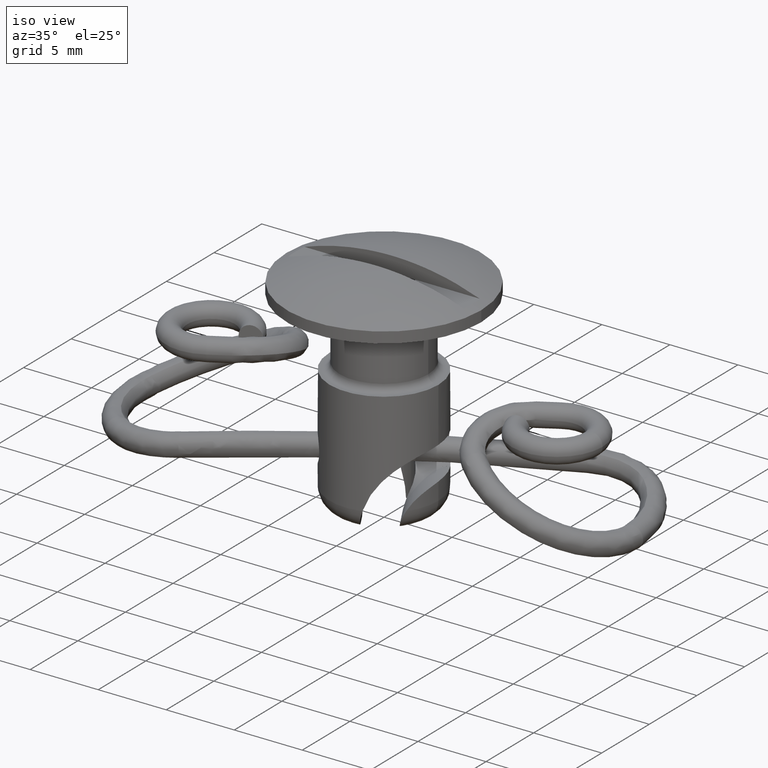
[diagram: clean part render]
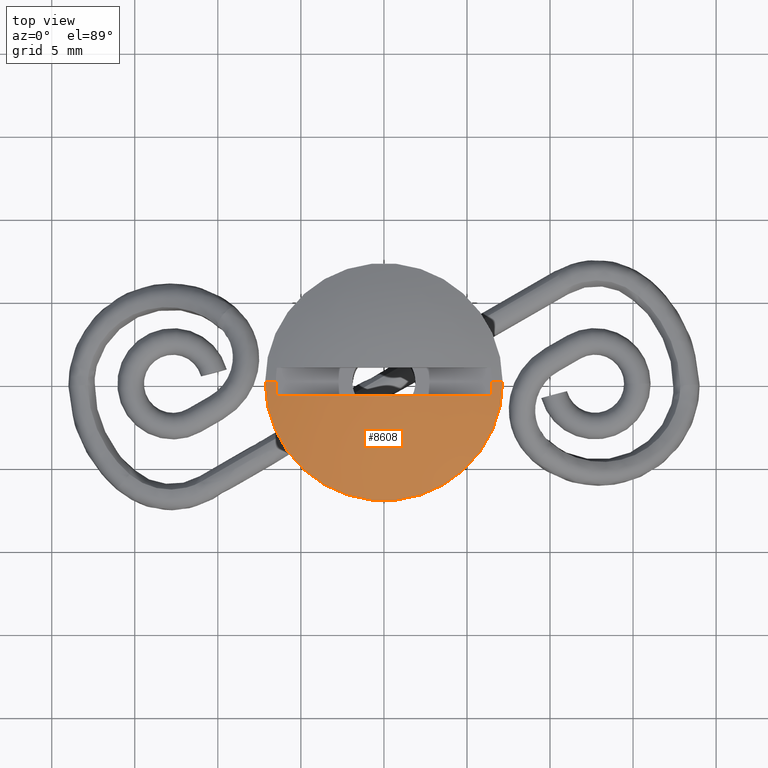
[diagram: tour spotlight — one face highlighted and labeled with its STEP entity id]
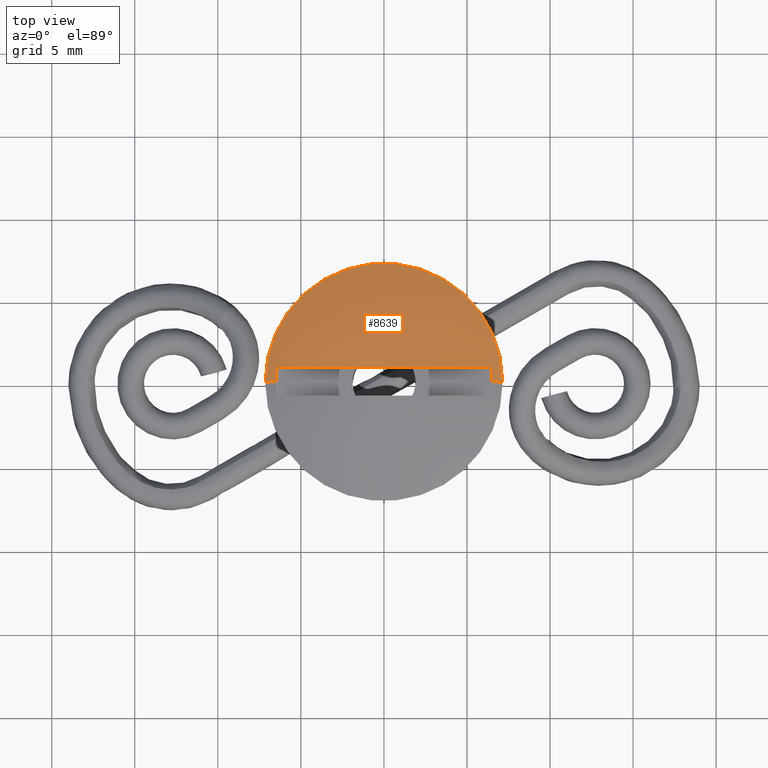
[diagram: tour spotlight — one face highlighted and labeled with its STEP entity id]
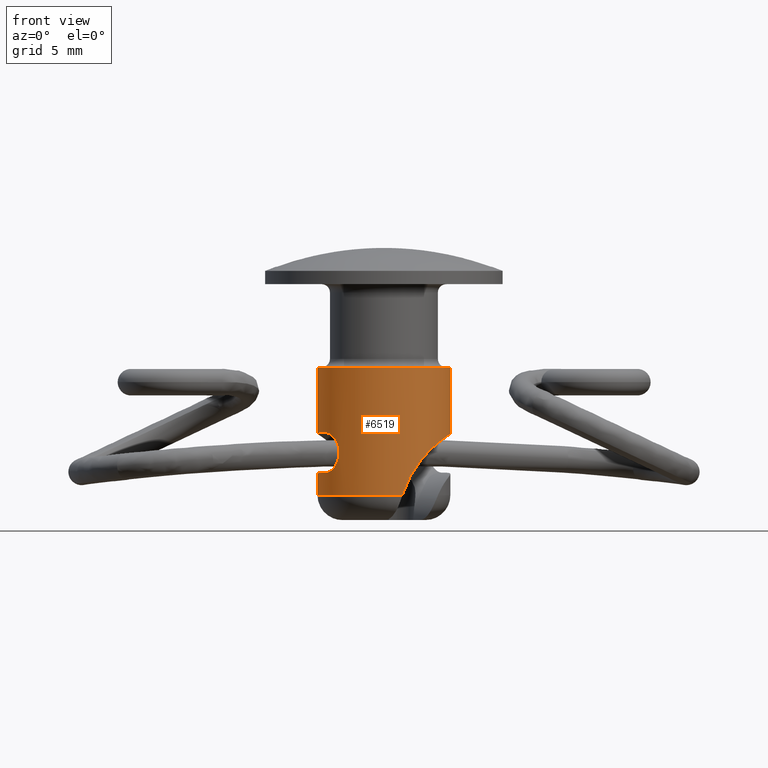
[diagram: tour spotlight — one face highlighted and labeled with its STEP entity id]
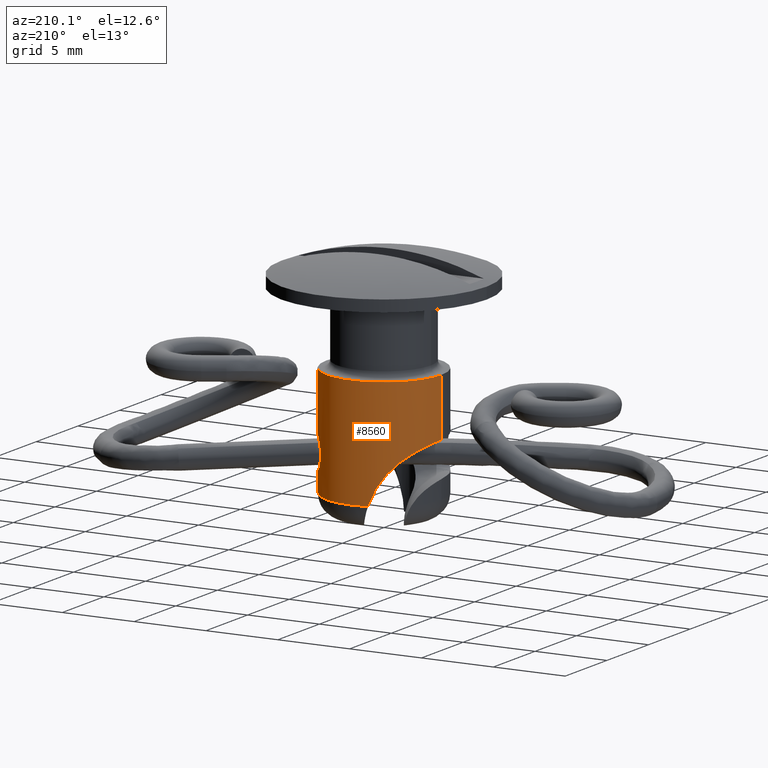
[diagram: tour spotlight — one face highlighted and labeled with its STEP entity id]
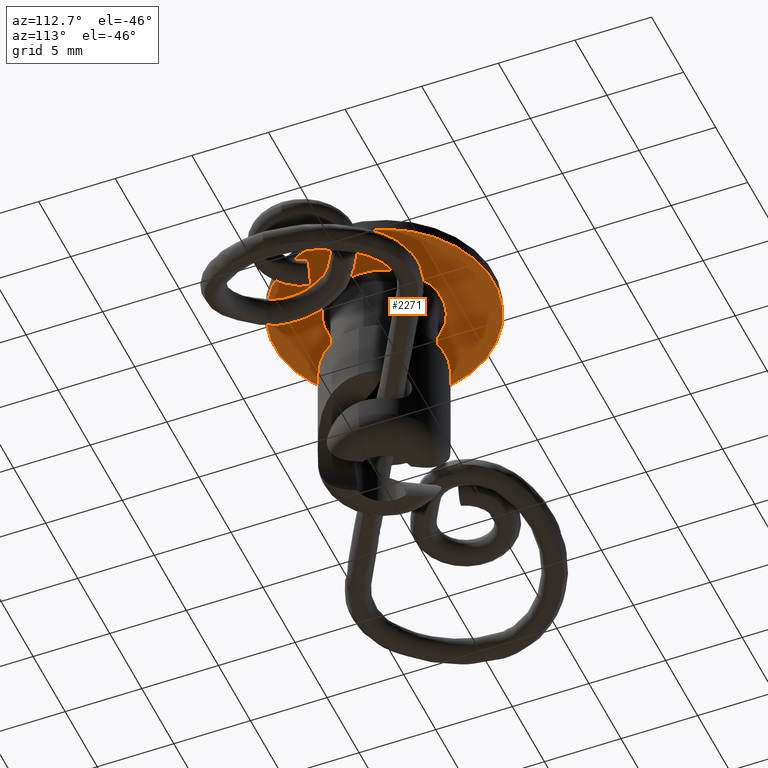
[diagram: tour spotlight — one face highlighted and labeled with its STEP entity id]
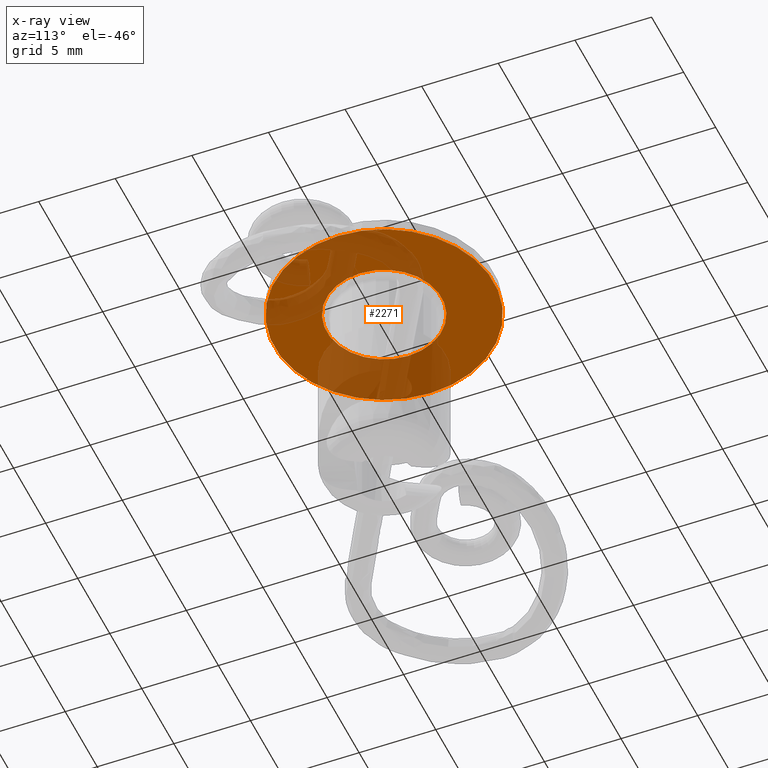
[diagram: x-ray of the same camera — body ghosted, this tour face saturated]
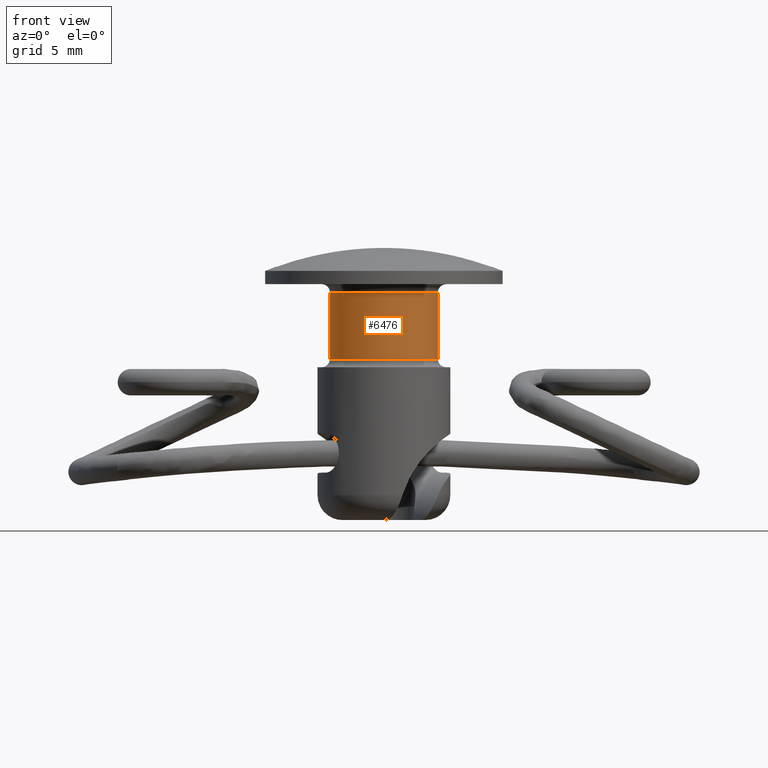
[diagram: tour spotlight — one face highlighted and labeled with its STEP entity id]
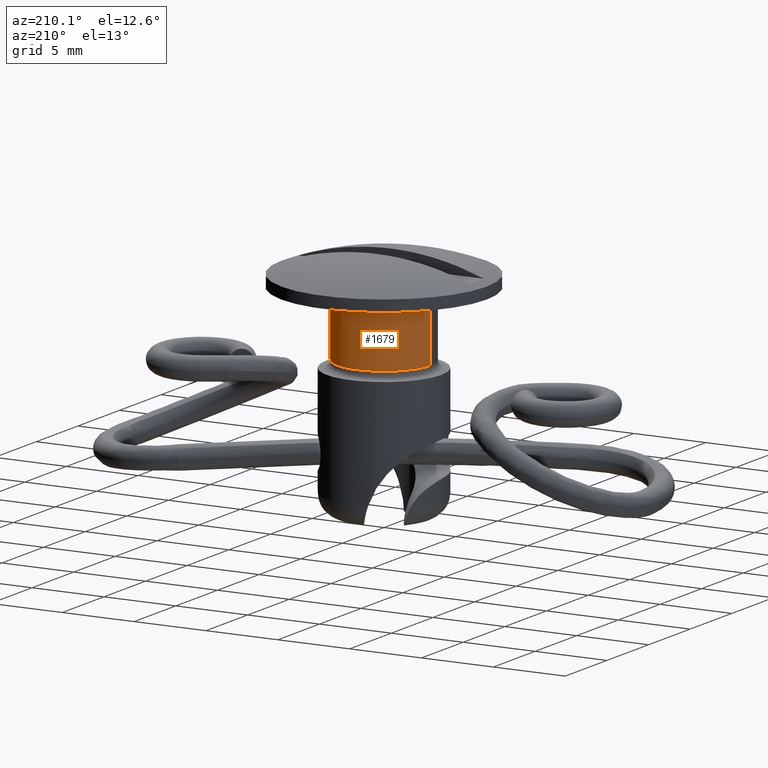
[diagram: tour spotlight — one face highlighted and labeled with its STEP entity id]
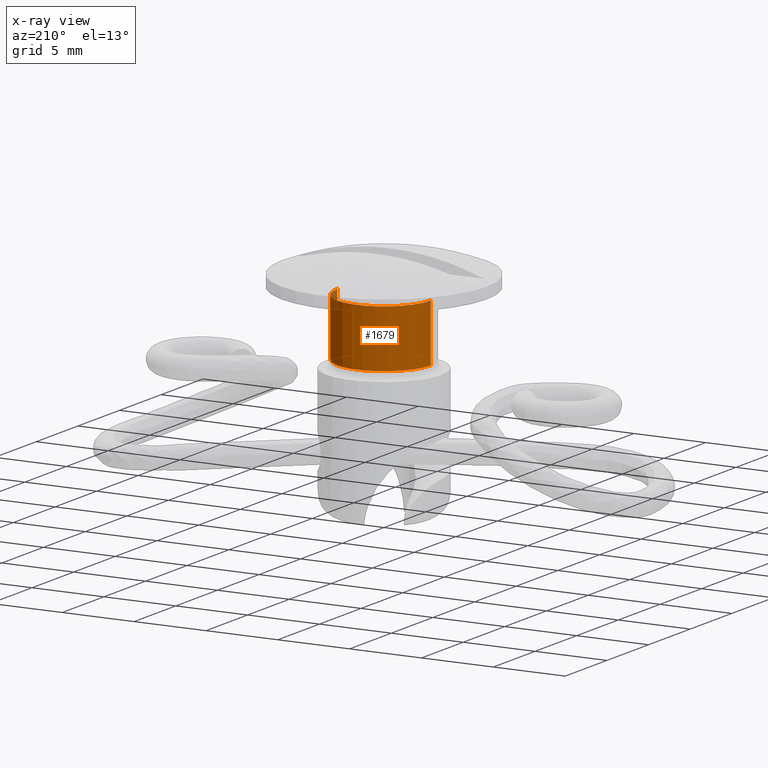
[diagram: x-ray of the same camera — body ghosted, this tour face saturated]
A machine part: a face-by-face anatomy tour. The part has 77 B-rep faces; the first image is the clean iso view, then the 7 largest visible faces are spotlighted one at a time (largest first), each with its STEP entity span.

Face 1 — top view, entity #8608. In plain terms, the highlighted face is a freeform B-spline surface patch.
Definition (entity closure, byte-faithful):
#45 = CARTESIAN_POINT ( 'NONE',  ( -6.501588735457489500, 0.0000000000000000000, 11.19406900172935500 ) ) ;
#60 = FACE_OUTER_BOUND ( 'NONE', #2527, .T. ) ;
#98 = CARTESIAN_POINT ( 'NONE',  ( 2.181967188264089000, -0.8500000000000007500, 12.20619556156173100 ) ) ;
#174 = CARTESIAN_POINT ( 'NONE',  ( -7.150000000000000400, -3.999999997006400700E-006, 10.94406900000000100 ) ) ;
#210 = ORIENTED_EDGE ( 'NONE', *, *, #6959, .T. ) ;
#313 = CARTESIAN_POINT ( 'NONE',  ( -2.992498723098024900, -1.766092018537733300, 12.23258036339877500 ) ) ;
#797 = CARTESIAN_POINT ( 'NONE',  ( 0.5389526259562028600, -0.8499999999999993100, 12.32501348234358400 ) ) ;
#851 =( BOUNDED_CURVE ( )  B_SPLINE_CURVE ( 3, ( #174, #8557, #882, #5743 ),
 .UNSPECIFIED., .F., .F. ) 
 B_SPLINE_CURVE_WITH_KNOTS ( ( 4, 4 ),
 ( 0.0000000000000000000, 0.09523011255646159100 ),
 .UNSPECIFIED. ) 
 CURVE ( )  GEOMETRIC_REPRESENTATION_ITEM ( )  RATIONAL_B_SPLINE_CURVE ( ( 1.000000000000000000, 0.9988221645102962600, 0.9977564944268499900, 0.9968029897496611900 ) ) 
 REPRESENTATION_ITEM ( '' )  );
#882 = CARTESIAN_POINT ( 'NONE',  ( -6.719354066667440500, 0.0000000000000000000, 11.11465107343305500 ) ) ;
#976 = VERTEX_POINT ( 'NONE', #5826 ) ;
#986 = CARTESIAN_POINT ( 'NONE',  ( 4.286937253965013500, -7.109918092689832200, 10.94406900000000200 ) ) ;
#1017 = CARTESIAN_POINT ( 'NONE',  ( 0.02820005179272934400, -2.992367486626660500, 12.23258036339877100 ) ) ;
#1345 = EDGE_CURVE ( 'NONE', #4145, #6568, #7185, .T. ) ;
#1506 = CARTESIAN_POINT ( 'NONE',  ( -2.199387845426258500, -0.8499999999999780000, 12.22762834914295200 ) ) ;
#1546 = CARTESIAN_POINT ( 'NONE',  ( 0.0000000000000000000, -3.999999997006400700E-006, 11.19406900172935500 ) ) ;
#1686 = CARTESIAN_POINT ( 'NONE',  ( 7.148729817869957000, 0.1347624316992944400, 10.94406900000000100 ) ) ;
#1720 = CARTESIAN_POINT ( 'NONE',  ( 3.025251523886094400, -1.709380703418737600, 12.23258036339877500 ) ) ;
#1799 = EDGE_CURVE ( 'NONE', #976, #2950, #3436, .T. ) ;
#1962 = CARTESIAN_POINT ( 'NONE',  ( 6.719354066667440500, -7.999999994835683800E-006, 11.11465107343305500 ) ) ;
#1993 = CARTESIAN_POINT ( 'NONE',  ( 6.935513689324601200, -7.999999994862155300E-006, 11.03130420393268800 ) ) ;
#2156 =( BOUNDED_SURFACE ( )  B_SPLINE_SURFACE ( 3, 3, ( 
 ( #4462, #7951, #2355, #5161, #986, #5851, #1686 ),
 ( #6561, #2385, #7270, #3090, #7983, #3795, #8688 ),
 ( #4494, #313, #5195, #1017, #5885, #1720, #6593 ),
 ( #2420, #7303, #3124, #8014, #3825, #8726, #4526 ) ),
 .UNSPECIFIED., .F., .F., .F. ) 
 B_SPLINE_SURFACE_WITH_KNOTS ( ( 4, 4 ),
 ( 4, 3, 4 ),
 ( 0.0000000000000000000, 0.8892512737954054700 ),
 ( 0.0000000000000000000, 0.5000000000000000000, 1.000000000000000000 ),
 .UNSPECIFIED. ) 
 GEOMETRIC_REPRESENTATION_ITEM ( )  RATIONAL_B_SPLINE_SURFACE ( (
 ( 1.000000000000000000, 0.8025111190447794500, 0.8025111190447794500, 1.000000000000000000, 0.8025111190447794500, 0.8025111190447794500, 1.000000000000000000),
 ( 0.9890014651729047700, 0.7936846725528342600, 0.7936846725528342600, 0.9890014651729047700, 0.7936846725528342600, 0.7936846725528342600, 0.9890014651729047700),
 ( 0.9877833914506870500, 0.7927071548469383200, 0.7927071548469383200, 0.9877833914506870500, 0.7927071548469383200, 0.7927071548469383200, 0.9877833914506870500),
 ( 0.9963457788333470700, 0.7995785659270916400, 0.7995785659270916400, 0.9963457788333470700, 0.7995785659270916400, 0.7995785659270916400, 0.9963457788333470700) ) ) 
 REPRESENTATION_ITEM ( '' )  SURFACE ( )  );
#2169 = DIRECTION ( 'NONE',  ( 0.0000000000000000000, 0.0000000000000000000, -1.000000000000000000 ) ) ;
#2206 = CARTESIAN_POINT ( 'NONE',  ( -4.342243256859173800, -0.8500000000000002000, 11.82784823588109400 ) ) ;
#2240 = DIRECTION ( 'NONE',  ( 1.000000000000000000, 0.0000000000000000000, 0.0000000000000000000 ) ) ;
#2286 = CARTESIAN_POINT ( 'NONE',  ( 6.501588735457489500, -7.999999994809017500E-006, 11.19406900172935500 ) ) ;
#2355 = CARTESIAN_POINT ( 'NONE',  ( -4.152168836447589100, -7.189454839841388000, 10.94406900000000200 ) ) ;
#2385 = CARTESIAN_POINT ( 'NONE',  ( -5.127257932808900500, -3.025970309163778200, 11.76675331078246600 ) ) ;
#2420 = CARTESIAN_POINT ( 'NONE',  ( -0.8081780592356239100, 0.0000000000000000000, 12.32652320056815000 ) ) ;
#2527 = EDGE_LOOP ( 'NONE', ( #210, #4374, #2947, #5004, #6955, #3517 ) ) ;
#2579 = EDGE_CURVE ( 'NONE', #6568, #976, #8606, .T. ) ;
#2915 = CARTESIAN_POINT ( 'NONE',  ( -5.928064567513653800, -0.8500000000000002000, 11.38125904685823500 ) ) ;
#2947 = ORIENTED_EDGE ( 'NONE', *, *, #2579, .T. ) ;
#2950 = VERTEX_POINT ( 'NONE', #3041 ) ;
#3010 = EDGE_CURVE ( 'NONE', #7614, #4317, #851, .T. ) ;
#3041 = CARTESIAN_POINT ( 'NONE',  ( -6.445786444261693200, -0.8499999999999998700, 11.19406900172935000 ) ) ;
#3090 = CARTESIAN_POINT ( 'NONE',  ( 0.04831999569403088600, -5.127031879758004800, 11.76675331078246800 ) ) ;
#3109 = AXIS2_PLACEMENT_3D ( 'NONE', #3940, #8841, #4646 ) ;
#3124 = CARTESIAN_POINT ( 'NONE',  ( -0.4693310851918019400, -0.8126392021485213700, 12.32652320056814700 ) ) ;
#3151 = AXIS2_PLACEMENT_3D ( 'NONE', #1546, #6407, #2240 ) ;
#3387 = CARTESIAN_POINT ( 'NONE',  ( -7.150000000000000400, -3.999999997006400700E-006, 10.94406900000000100 ) ) ;
#3436 = B_SPLINE_CURVE_WITH_KNOTS ( 'NONE', 3,
 ( #7097, #3579, #8476, #4283, #98, #4976, #797, #5672, #1506, #6370, #2206, #7091, #2915, #7787 ),
 .UNSPECIFIED., .F., .F.,
 ( 4, 2, 2, 2, 2, 2, 4 ),
 ( 6.314488766312914300E-018, 0.003286518664587449700, 0.004929777996881171100, 0.006573037329174894300, 0.009859555993762338800, 0.01150281532605606200, 0.01314607465834978300 ),
 .UNSPECIFIED. ) ;
#3517 = ORIENTED_EDGE ( 'NONE', *, *, #3010, .F. ) ;
#3579 = CARTESIAN_POINT ( 'NONE',  ( 5.410311989398871400, -0.8499999999999999800, 11.56846019252291100 ) ) ;
#3795 = CARTESIAN_POINT ( 'NONE',  ( 5.183378935872271500, -2.928797065565012800, 11.76675331078246600 ) ) ;
#3825 = CARTESIAN_POINT ( 'NONE',  ( 0.4845571195685018900, -0.8036532003192431400, 12.32652320056814700 ) ) ;
#3896 = CIRCLE ( 'NONE', #3109, 7.150000000000000400 ) ;
#3940 = CARTESIAN_POINT ( 'NONE',  ( 0.0000000000000000000, -3.999999997006400700E-006, 10.94406900000000100 ) ) ;
#4145 = VERTEX_POINT ( 'NONE', #7192 ) ;
#4283 = CARTESIAN_POINT ( 'NONE',  ( 2.728670495609855500, -0.8499999999999996400, 12.13466712763703400 ) ) ;
#4317 = VERTEX_POINT ( 'NONE', #45 ) ;
#4374 = ORIENTED_EDGE ( 'NONE', *, *, #1345, .T. ) ;
#4462 = CARTESIAN_POINT ( 'NONE',  ( -7.149999999999998600, 0.0000000000000000000, 10.94406900000000100 ) ) ;
#4494 = CARTESIAN_POINT ( 'NONE',  ( -2.992496362404070400, 0.0000000000000000000, 12.23258036339877100 ) ) ;
#4526 = CARTESIAN_POINT ( 'NONE',  ( 0.8080345550145835400, 0.01522535810347309600, 12.32652320056815000 ) ) ;
#4552 = CIRCLE ( 'NONE', #6078, 6.501588735458718700 ) ;
#4646 = DIRECTION ( 'NONE',  ( 1.000000000000000000, 0.0000000000000000000, 0.0000000000000000000 ) ) ;
#4976 = CARTESIAN_POINT ( 'NONE',  ( 1.087815165211636300, -0.8500000000000008700, 12.30121568767199000 ) ) ;
#5004 = ORIENTED_EDGE ( 'NONE', *, *, #1799, .T. ) ;
#5161 = CARTESIAN_POINT ( 'NONE',  ( 0.06738420875871156700, -7.149686466265610100, 10.94406900000000100 ) ) ;
#5195 = CARTESIAN_POINT ( 'NONE',  ( -1.737813546983869600, -3.009010409578614100, 12.23258036339877500 ) ) ;
#5485 = CARTESIAN_POINT ( 'NONE',  ( 7.150000000000000400, -3.999999996130777900E-006, 10.94406900000000100 ) ) ;
#5672 = CARTESIAN_POINT ( 'NONE',  ( -1.112581260775427500, -0.8499999999999993100, 12.32399802229161700 ) ) ;
#5743 = CARTESIAN_POINT ( 'NONE',  ( -6.501588735457489500, 0.0000000000000000000, 11.19406900172935500 ) ) ;
#5826 = CARTESIAN_POINT ( 'NONE',  ( 6.445786444261689700, -0.8499999999999999800, 11.19406900172935200 ) ) ;
#5851 = CARTESIAN_POINT ( 'NONE',  ( 7.228265393044297900, -4.084228385679705500, 10.94406900000000200 ) ) ;
#5885 = CARTESIAN_POINT ( 'NONE',  ( 1.794213650569328200, -2.975724563674707800, 12.23258036339877500 ) ) ;
#6078 = AXIS2_PLACEMENT_3D ( 'NONE', #6336, #2169, #7053 ) ;
#6185 = CARTESIAN_POINT ( 'NONE',  ( 6.501588735457489500, -7.999999994809017500E-006, 11.19406900172935500 ) ) ;
#6336 = CARTESIAN_POINT ( 'NONE',  ( 0.0000000000000000000, -3.999999997006400700E-006, 11.19406900172935500 ) ) ;
#6370 = CARTESIAN_POINT ( 'NONE',  ( -3.809110494901594800, -0.8499999999999777700, 11.94516745128650500 ) ) ;
#6407 = DIRECTION ( 'NONE',  ( 0.0000000000000000000, 0.0000000000000000000, -1.000000000000000000 ) ) ;
#6448 = EDGE_CURVE ( 'NONE', #2950, #4317, #4552, .T. ) ;
#6561 = CARTESIAN_POINT ( 'NONE',  ( -5.127255572114947300, 0.0000000000000000000, 11.76675331078246800 ) ) ;
#6568 = VERTEX_POINT ( 'NONE', #2286 ) ;
#6593 = CARTESIAN_POINT ( 'NONE',  ( 2.991964795698558900, 0.05639759854185336800, 12.23258036339877100 ) ) ;
#6955 = ORIENTED_EDGE ( 'NONE', *, *, #6448, .T. ) ;
#6959 = EDGE_CURVE ( 'NONE', #7614, #4145, #3896, .T. ) ;
#7053 = DIRECTION ( 'NONE',  ( 1.000000000000000000, 1.065814103989878500E-014, 0.0000000000000000000 ) ) ;
#7091 = CARTESIAN_POINT ( 'NONE',  ( -5.401501512201690500, -0.8500000000000000900, 11.54604153403503200 ) ) ;
#7097 = CARTESIAN_POINT ( 'NONE',  ( 6.445786444261689700, -0.8499999999999999800, 11.19406900172935200 ) ) ;
#7185 =( BOUNDED_CURVE ( )  B_SPLINE_CURVE ( 3, ( #5485, #1993, #1962, #6185 ),
 .UNSPECIFIED., .F., .F. ) 
 B_SPLINE_CURVE_WITH_KNOTS ( ( 4, 4 ),
 ( 0.0000000000000000000, 0.09523011255646159100 ),
 .UNSPECIFIED. ) 
 CURVE ( )  GEOMETRIC_REPRESENTATION_ITEM ( )  RATIONAL_B_SPLINE_CURVE ( ( 1.000000000000000000, 0.9988221645102962600, 0.9977564944268499900, 0.9968029897496611900 ) ) 
 REPRESENTATION_ITEM ( '' )  );
#7192 = CARTESIAN_POINT ( 'NONE',  ( 7.150000000000000400, -3.999999996130777900E-006, 10.94406900000000100 ) ) ;
#7270 = CARTESIAN_POINT ( 'NONE',  ( -2.977515935477070800, -5.155549060197433400, 11.76675331078246600 ) ) ;
#7303 = CARTESIAN_POINT ( 'NONE',  ( -0.8081804199295774500, -0.4769652648221407400, 12.32652320056814700 ) ) ;
#7614 = VERTEX_POINT ( 'NONE', #3387 ) ;
#7787 = CARTESIAN_POINT ( 'NONE',  ( -6.445786444261693200, -0.8499999999999998700, 11.19406900172935000 ) ) ;
#7951 = CARTESIAN_POINT ( 'NONE',  ( -7.150002360693951800, -4.219740445198147500, 10.94406900000000200 ) ) ;
#7983 = CARTESIAN_POINT ( 'NONE',  ( 3.074155926865132800, -5.098514699318578800, 11.76675331078246600 ) ) ;
#8014 = CARTESIAN_POINT ( 'NONE',  ( 0.007613017188350002000, -0.8081462012338823700, 12.32652320056815000 ) ) ;
#8476 = CARTESIAN_POINT ( 'NONE',  ( 4.351536304258065300, -0.8499999999999995300, 11.85016043457589800 ) ) ;
#8557 = CARTESIAN_POINT ( 'NONE',  ( -6.935513689324601200, 0.0000000000000000000, 11.03130420393268800 ) ) ;
#8606 = CIRCLE ( 'NONE', #3151, 6.501588735458718700 ) ;
#8608 = ADVANCED_FACE ( 'NONE', ( #60 ), #2156, .F. ) ;
#8688 = CARTESIAN_POINT ( 'NONE',  ( 5.126344747513979200, 0.09663569906629185200, 11.76675331078246800 ) ) ;
#8726 = CARTESIAN_POINT ( 'NONE',  ( 0.8170225184192854200, -0.4616552143318732300, 12.32652320056814700 ) ) ;
#8841 = DIRECTION ( 'NONE',  ( 0.0000000000000000000, 0.0000000000000000000, 1.000000000000000000 ) ) ;

Face 2 — top view, entity #8639. In plain terms, the highlighted face is a freeform B-spline surface patch.
Definition (entity closure, byte-faithful):
#45 = CARTESIAN_POINT ( 'NONE',  ( -6.501588735457489500, 0.0000000000000000000, 11.19406900172935500 ) ) ;
#174 = CARTESIAN_POINT ( 'NONE',  ( -7.150000000000000400, -3.999999997006400700E-006, 10.94406900000000100 ) ) ;
#277 = CARTESIAN_POINT ( 'NONE',  ( 4.251244827283216000, 7.149994810842007300, 10.94406899999999900 ) ) ;
#376 = CARTESIAN_POINT ( 'NONE',  ( 3.048564693095332500, 5.127252571814955800, 11.76675228371166400 ) ) ;
#397 = CIRCLE ( 'NONE', #1241, 7.150000000000000400 ) ;
#409 = CARTESIAN_POINT ( 'NONE',  ( 0.8171020683860410500, 0.4652043495653434000, 12.32652285558108400 ) ) ;
#504 = CARTESIAN_POINT ( 'NONE',  ( 5.401500620443055600, 0.8500000000000007500, 11.54604142223126900 ) ) ;
#515 = CIRCLE ( 'NONE', #7361, 6.501588735458718700 ) ;
#697 = EDGE_CURVE ( 'NONE', #3503, #1313, #5284, .T. ) ;
#851 =( BOUNDED_CURVE ( )  B_SPLINE_CURVE ( 3, ( #174, #8557, #882, #5743 ),
 .UNSPECIFIED., .F., .F. ) 
 B_SPLINE_CURVE_WITH_KNOTS ( ( 4, 4 ),
 ( 0.0000000000000000000, 0.09523011255646159100 ),
 .UNSPECIFIED. ) 
 CURVE ( )  GEOMETRIC_REPRESENTATION_ITEM ( )  RATIONAL_B_SPLINE_CURVE ( ( 1.000000000000000000, 0.9988221645102962600, 0.9977564944268499900, 0.9968029897496611900 ) ) 
 REPRESENTATION_ITEM ( '' )  );
#882 = CARTESIAN_POINT ( 'NONE',  ( -6.719354066667440500, 0.0000000000000000000, 11.11465107343305500 ) ) ;
#1082 = CARTESIAN_POINT ( 'NONE',  ( -3.048559561491472400, 5.127255622960985800, 11.76675228371166400 ) ) ;
#1115 = CARTESIAN_POINT ( 'NONE',  ( 3.773933960874432700E-006, 0.8081820806875387200, 12.32652285558108000 ) ) ;
#1186 = CARTESIAN_POINT ( 'NONE',  ( -5.410311093907863800, 0.8500000000000004200, 11.56846007359221100 ) ) ;
#1210 = CARTESIAN_POINT ( 'NONE',  ( 6.445785389308870400, 0.8499999999999997600, 11.19406900172935500 ) ) ;
#1241 = AXIS2_PLACEMENT_3D ( 'NONE', #1745, #6622, #2445 ) ;
#1254 = CARTESIAN_POINT ( 'NONE',  ( 6.445785389308870400, 0.8499999999999997600, 11.19406900172935500 ) ) ;
#1313 = VERTEX_POINT ( 'NONE', #1254 ) ;
#1345 = EDGE_CURVE ( 'NONE', #4145, #6568, #7185, .T. ) ;
#1558 = AXIS2_PLACEMENT_3D ( 'NONE', #2941, #7821, #3639 ) ;
#1638 = ORIENTED_EDGE ( 'NONE', *, *, #3010, .T. ) ;
#1745 = CARTESIAN_POINT ( 'NONE',  ( 0.0000000000000000000, -3.999999997006400700E-006, 10.94406900000000100 ) ) ;
#1786 = CARTESIAN_POINT ( 'NONE',  ( -5.126347273199088200, -0.09664370095844625200, 11.76675228371166200 ) ) ;
#1818 = CARTESIAN_POINT ( 'NONE',  ( -0.8170977236440791800, 0.4652119806817921500, 12.32652285558108400 ) ) ;
#1887 = CARTESIAN_POINT ( 'NONE',  ( -4.351535580825056600, 0.8500000000000022000, 11.85016022551415000 ) ) ;
#1942 = CIRCLE ( 'NONE', #1558, 6.501588735458718700 ) ;
#1962 = CARTESIAN_POINT ( 'NONE',  ( 6.719354066667440500, -7.999999994835683800E-006, 11.11465107343305500 ) ) ;
#1993 = CARTESIAN_POINT ( 'NONE',  ( 6.935513689324601200, -7.999999994862155300E-006, 11.03130420393268800 ) ) ;
#2145 = CARTESIAN_POINT ( 'NONE',  ( 0.0000000000000000000, -3.999999997006400700E-006, 11.19406900172935500 ) ) ;
#2286 = CARTESIAN_POINT ( 'NONE',  ( 6.501588735457489500, -7.999999994809017500E-006, 11.19406900172935500 ) ) ;
#2445 = DIRECTION ( 'NONE',  ( 1.000000000000000000, 0.0000000000000000000, 0.0000000000000000000 ) ) ;
#2451 = CARTESIAN_POINT ( 'NONE',  ( 7.148729743676647700, -0.1347743672503105600, 10.94406899999999900 ) ) ;
#2485 = CARTESIAN_POINT ( 'NONE',  ( 3.025508987538988200, 1.722551753124382100, 12.23257921165933500 ) ) ;
#2591 = CARTESIAN_POINT ( 'NONE',  ( -2.181966833908288700, 0.8499999999999996400, 12.20619523827276600 ) ) ;
#2856 = DIRECTION ( 'NONE',  ( 1.000000000000000000, 0.0000000000000000000, 0.0000000000000000000 ) ) ;
#2941 = CARTESIAN_POINT ( 'NONE',  ( 0.0000000000000000000, -3.999999997006400700E-006, 11.19406900172935500 ) ) ;
#3010 = EDGE_CURVE ( 'NONE', #7614, #4317, #851, .T. ) ;
#3154 = CARTESIAN_POINT ( 'NONE',  ( -4.251240827283214500, 7.149997189159671900, 10.94406899999999900 ) ) ;
#3191 = CARTESIAN_POINT ( 'NONE',  ( 3.162936602631567900E-006, 2.992497640512263400, 12.23257921165933800 ) ) ;
#3289 = CARTESIAN_POINT ( 'NONE',  ( -0.5389525517155869800, 0.8499999999999999800, 12.32501311994509400 ) ) ;
#3387 = CARTESIAN_POINT ( 'NONE',  ( -7.150000000000000400, -3.999999997006400700E-006, 10.94406900000000100 ) ) ;
#3503 = VERTEX_POINT ( 'NONE', #5665 ) ;
#3639 = DIRECTION ( 'NONE',  ( 1.000000000000000000, 0.0000000000000000000, 0.0000000000000000000 ) ) ;
#3759 = CARTESIAN_POINT ( 'NONE',  ( 7.228861429984780400, 4.115713191768985100, 10.94406899999999900 ) ) ;
#3859 = CARTESIAN_POINT ( 'NONE',  ( -7.148729819071538000, -0.1347703679609208700, 10.94406899999999900 ) ) ;
#3886 = CARTESIAN_POINT ( 'NONE',  ( -3.025505346207814700, 1.722558148768234900, 12.23257921165933500 ) ) ;
#3986 = CARTESIAN_POINT ( 'NONE',  ( 2.199387455158759800, 0.8499999999999773300, 12.22762802319795500 ) ) ;
#4145 = VERTEX_POINT ( 'NONE', #7192 ) ;
#4150 = ORIENTED_EDGE ( 'NONE', *, *, #697, .T. ) ;
#4317 = VERTEX_POINT ( 'NONE', #45 ) ;
#4501 = EDGE_LOOP ( 'NONE', ( #7099, #4818, #1638, #5586, #4150, #6841 ) ) ;
#4561 = CARTESIAN_POINT ( 'NONE',  ( 5.183810204076145600, 2.951371680817864300, 11.76675228371166400 ) ) ;
#4593 = CARTESIAN_POINT ( 'NONE',  ( 0.8080424329084469100, -0.01524104862236460300, 12.32652285558108000 ) ) ;
#4690 = CARTESIAN_POINT ( 'NONE',  ( 4.342242526893518800, 0.8500000000000009800, 11.82784803646669400 ) ) ;
#4818 = ORIENTED_EDGE ( 'NONE', *, *, #6768, .T. ) ;
#5073 = EDGE_CURVE ( 'NONE', #4317, #3503, #515, .T. ) ;
#5209 = EDGE_CURVE ( 'NONE', #1313, #6568, #1942, .T. ) ;
#5262 = CARTESIAN_POINT ( 'NONE',  ( 2.565801930498617000E-006, 5.127254097387970300, 11.76675228371166200 ) ) ;
#5284 = B_SPLINE_CURVE_WITH_KNOTS ( 'NONE', 3,
 ( #6050, #1186, #1887, #6766, #2591, #7470, #3289, #8182, #3986, #8885, #4690, #504, #5387, #1210 ),
 .UNSPECIFIED., .F., .F.,
 ( 4, 2, 2, 2, 2, 2, 4 ),
 ( 7.152448122690996000E-018, 0.003286518095609555400, 0.004929777143414331400, 0.006573036191219107400, 0.009859554286828659300, 0.01150281333463343600, 0.01314607238243821300 ),
 .UNSPECIFIED. ) ;
#5289 = CARTESIAN_POINT ( 'NONE',  ( 0.4805345821343270400, 0.8081798367840868900, 12.32652285558108400 ) ) ;
#5387 = CARTESIAN_POINT ( 'NONE',  ( 5.928063592257398500, 0.8500000000000008700, 11.38125898740620700 ) ) ;
#5485 = CARTESIAN_POINT ( 'NONE',  ( 7.150000000000000400, -3.999999996130777900E-006, 10.94406900000000100 ) ) ;
#5586 = ORIENTED_EDGE ( 'NONE', *, *, #5073, .T. ) ;
#5665 = CARTESIAN_POINT ( 'NONE',  ( -6.445785389308870400, 0.8499999999999997600, 11.19406900172935500 ) ) ;
#5743 = CARTESIAN_POINT ( 'NONE',  ( -6.501588735457489500, 0.0000000000000000000, 11.19406900172935500 ) ) ;
#5769 =( BOUNDED_SURFACE ( )  B_SPLINE_SURFACE ( 3, 3, ( 
 ( #2451, #3759, #277, #7337, #3154, #8047, #3859 ),
 ( #8758, #4561, #376, #5262, #1082, #5948, #1786 ),
 ( #6663, #2485, #7369, #3191, #8085, #3886, #8787 ),
 ( #4593, #409, #5289, #1115, #5980, #1818, #6697 ) ),
 .UNSPECIFIED., .F., .F., .F. ) 
 B_SPLINE_SURFACE_WITH_KNOTS ( ( 4, 4 ),
 ( 4, 3, 4 ),
 ( 0.0000000000000000000, 0.8892501758301323300 ),
 ( 0.0000000000000000000, 0.5000000000000000000, 1.000000000000000000 ),
 .UNSPECIFIED. ) 
 GEOMETRIC_REPRESENTATION_ITEM ( )  RATIONAL_B_SPLINE_SURFACE ( (
 ( 1.000000000000000000, 0.8002740331747961700, 0.8002740331747961700, 1.000000000000000000, 0.8002740331747961700, 0.8002740331747961700, 1.000000000000000000),
 ( 0.9890014787528789200, 0.7914722022174038900, 0.7914722022174038900, 0.9890014787528789200, 0.7914722022174038900, 0.7914722022174038900, 0.9890014787528789200),
 ( 0.9877833944586317200, 0.7904974009864997900, 0.7904974009864997900, 0.9877833944586317200, 0.7904974009864997900, 0.7904974009864997900, 0.9877833944586317200),
 ( 0.9963457471172583200, 0.7973496294820838800, 0.7973496294820838800, 0.9963457471172583200, 0.7973496294820838800, 0.7973496294820838800, 0.9963457471172583200) ) ) 
 REPRESENTATION_ITEM ( '' )  SURFACE ( )  );
#5948 = CARTESIAN_POINT ( 'NONE',  ( -5.183807250196341700, 2.951376869020286600, 11.76675228371166400 ) ) ;
#5980 = CARTESIAN_POINT ( 'NONE',  ( -0.4805270342664053100, 0.8081843245909907700, 12.32652285558108400 ) ) ;
#6050 = CARTESIAN_POINT ( 'NONE',  ( -6.445785389308870400, 0.8499999999999997600, 11.19406900172935500 ) ) ;
#6185 = CARTESIAN_POINT ( 'NONE',  ( 6.501588735457489500, -7.999999994809017500E-006, 11.19406900172935500 ) ) ;
#6568 = VERTEX_POINT ( 'NONE', #2286 ) ;
#6622 = DIRECTION ( 'NONE',  ( 0.0000000000000000000, 0.0000000000000000000, 1.000000000000000000 ) ) ;
#6663 = CARTESIAN_POINT ( 'NONE',  ( 2.991969954136295900, -0.05641199610181712300, 12.23257921165933800 ) ) ;
#6697 = CARTESIAN_POINT ( 'NONE',  ( -0.8080425751761170000, -0.01523350209534389200, 12.32652285558108000 ) ) ;
#6766 = CARTESIAN_POINT ( 'NONE',  ( -2.728670049191195300, 0.8500000000000017500, 12.13466682693797200 ) ) ;
#6768 = EDGE_CURVE ( 'NONE', #4145, #7614, #397, .T. ) ;
#6841 = ORIENTED_EDGE ( 'NONE', *, *, #5209, .T. ) ;
#7030 = DIRECTION ( 'NONE',  ( 0.0000000000000000000, 0.0000000000000000000, -1.000000000000000000 ) ) ;
#7099 = ORIENTED_EDGE ( 'NONE', *, *, #1345, .F. ) ;
#7185 =( BOUNDED_CURVE ( )  B_SPLINE_CURVE ( 3, ( #5485, #1993, #1962, #6185 ),
 .UNSPECIFIED., .F., .F. ) 
 B_SPLINE_CURVE_WITH_KNOTS ( ( 4, 4 ),
 ( 0.0000000000000000000, 0.09523011255646159100 ),
 .UNSPECIFIED. ) 
 CURVE ( )  GEOMETRIC_REPRESENTATION_ITEM ( )  RATIONAL_B_SPLINE_CURVE ( ( 1.000000000000000000, 0.9988221645102962600, 0.9977564944268499900, 0.9968029897496611900 ) ) 
 REPRESENTATION_ITEM ( '' )  );
#7192 = CARTESIAN_POINT ( 'NONE',  ( 7.150000000000000400, -3.999999996130777900E-006, 10.94406900000000100 ) ) ;
#7268 = FACE_OUTER_BOUND ( 'NONE', #4501, .T. ) ;
#7337 = CARTESIAN_POINT ( 'NONE',  ( 2.000000000749118400E-006, 7.149996000000840000, 10.94406899999999900 ) ) ;
#7361 = AXIS2_PLACEMENT_3D ( 'NONE', #2145, #7030, #2856 ) ;
#7369 = CARTESIAN_POINT ( 'NONE',  ( 1.779283041937932400, 2.992495759895263500, 12.23257921165933500 ) ) ;
#7470 = CARTESIAN_POINT ( 'NONE',  ( -1.087814996467693500, 0.8499999999999997600, 12.30121533397176300 ) ) ;
#7614 = VERTEX_POINT ( 'NONE', #3387 ) ;
#7821 = DIRECTION ( 'NONE',  ( 0.0000000000000000000, 0.0000000000000000000, -1.000000000000000000 ) ) ;
#8047 = CARTESIAN_POINT ( 'NONE',  ( -7.228859127484519800, 4.115717235886625900, 10.94406899999999900 ) ) ;
#8085 = CARTESIAN_POINT ( 'NONE',  ( -1.779276716064727400, 2.992499521129262000, 12.23257921165933500 ) ) ;
#8182 = CARTESIAN_POINT ( 'NONE',  ( 1.112581050256918700, 0.8499999999999997600, 12.32399766195704800 ) ) ;
#8557 = CARTESIAN_POINT ( 'NONE',  ( -6.935513689324601200, 0.0000000000000000000, 11.03130420393268800 ) ) ;
#8639 = ADVANCED_FACE ( 'NONE', ( #7268 ), #5769, .F. ) ;
#8758 = CARTESIAN_POINT ( 'NONE',  ( 5.126347176474908500, -0.09664883165066265300, 11.76675228371166200 ) ) ;
#8787 = CARTESIAN_POINT ( 'NONE',  ( -2.991970073370926000, -0.05640567135242192900, 12.23257921165933800 ) ) ;
#8885 = CARTESIAN_POINT ( 'NONE',  ( 3.809109848150500400, 0.8499999999999777700, 11.94516721506705000 ) ) ;

Face 3 — front view, entity #6519. In plain terms, the highlighted cylindrical surface (partial cylindrical patch) has radius 4 mm, axis along (0, 0, -1).
Definition (entity closure, byte-faithful):
#7 = ORIENTED_EDGE ( 'NONE', *, *, #5181, .T. ) ;
#105 = EDGE_CURVE ( 'NONE', #6169, #1770, #2305, .T. ) ;
#155 = CARTESIAN_POINT ( 'NONE',  ( -3.954308747629220000, -0.6966578585512011000, 1.191494582005797800 ) ) ;
#164 = EDGE_CURVE ( 'NONE', #1770, #1903, #8652, .T. ) ;
#165 = VECTOR ( 'NONE', #3243, 1000.000000000000000 ) ;
#328 = CARTESIAN_POINT ( 'NONE',  ( 3.533181175579722200, -1.880010956124472900, 0.8084815871920637600 ) ) ;
#413 = CARTESIAN_POINT ( 'NONE',  ( -2.885419672740377400, -2.772548967508402700, 0.7387084553149493300 ) ) ;
#476 = CARTESIAN_POINT ( 'NONE',  ( 0.0000000000000000000, 0.0000000000000000000, 5.144069000000000000 ) ) ;
#594 = CARTESIAN_POINT ( 'NONE',  ( 4.000000000000045300, 3.069505338284420500E-016, 1.160480509632584800 ) ) ;
#614 = LINE ( 'NONE', #2543, #165 ) ;
#647 = CARTESIAN_POINT ( 'NONE',  ( 0.0000000000000000000, 0.0000000000000000000, -2.555927999999999800 ) ) ;
#822 = CARTESIAN_POINT ( 'NONE',  ( -3.774991056651655400, -1.367625927339959400, -1.201193300606756100 ) ) ;
#850 = CARTESIAN_POINT ( 'NONE',  ( 0.0000000000000000000, 0.0000000000000000000, 0.0000000000000000000 ) ) ;
#861 = CARTESIAN_POINT ( 'NONE',  ( -3.762002704476557400, -1.370369189685170200, 1.199742782360443600 ) ) ;
#870 = VERTEX_POINT ( 'NONE', #594 ) ;
#1002 = CARTESIAN_POINT ( 'NONE',  ( 1.275613954322511800, -3.795141080701644600, -2.010849694595112000 ) ) ;
#1032 = CARTESIAN_POINT ( 'NONE',  ( 3.762977481684300200, -1.383719082218707300, 0.9721022687312165200 ) ) ;
#1101 = ORIENTED_EDGE ( 'NONE', *, *, #5431, .T. ) ;
#1118 = CARTESIAN_POINT ( 'NONE',  ( -2.729586021088549000, -2.924601536715131000, 0.3168075562254948900 ) ) ;
#1357 = DIRECTION ( 'NONE',  ( 1.000000000000000000, 0.0000000000000000000, 0.0000000000000000000 ) ) ;
#1425 = CARTESIAN_POINT ( 'NONE',  ( -2.819988114319476000, -2.837537875933325600, -0.6063751524762344100 ) ) ;
#1499 = CARTESIAN_POINT ( 'NONE',  ( -3.464102112102345200, -1.999999139231945200, -1.200000000000000000 ) ) ;
#1529 = B_SPLINE_CURVE_WITH_KNOTS ( 'NONE', 3,
 ( #4301, #8502, #4997, #822, #5693, #1531 ),
 .UNSPECIFIED., .F., .F.,
 ( 4, 2, 4 ),
 ( 5.616939815975195400E-018, 0.001040645498572507000, 0.002081290997145008500 ),
 .UNSPECIFIED. ) ;
#1531 = CARTESIAN_POINT ( 'NONE',  ( -3.464102112102345200, -1.999999139231945200, -1.200000000000000000 ) ) ;
#1539 = CARTESIAN_POINT ( 'NONE',  ( -4.000000000000045300, -7.118724926628974700E-017, 1.160480509632581000 ) ) ;
#1557 = DIRECTION ( 'NONE',  ( 0.0000000000000000000, 0.0000000000000000000, -1.000000000000000000 ) ) ;
#1567 = CARTESIAN_POINT ( 'NONE',  ( -3.551033821064668100, -1.849428916116381900, 1.201474793915473300 ) ) ;
#1604 = CARTESIAN_POINT ( 'NONE',  ( -3.464102112102395400, -1.999999139231975100, 0.0000000000000000000 ) ) ;
#1606 = CARTESIAN_POINT ( 'NONE',  ( -4.000000000000045300, 0.0000000000000000000, -2.555927999999999800 ) ) ;
#1619 = AXIS2_PLACEMENT_3D ( 'NONE', #476, #4657, #8852 ) ;
#1700 = CARTESIAN_POINT ( 'NONE',  ( 1.516819561768721000, -3.715748494577460400, -1.509136201903661800 ) ) ;
#1733 = CARTESIAN_POINT ( 'NONE',  ( 3.969819734155897600, -0.5663938034001759800, 1.115443825560712900 ) ) ;
#1770 = VERTEX_POINT ( 'NONE', #3584 ) ;
#1822 = CARTESIAN_POINT ( 'NONE',  ( -2.704543060675894700, -2.947108215344360200, 0.0000000000000000000 ) ) ;
#1870 = ORIENTED_EDGE ( 'NONE', *, *, #2756, .F. ) ;
#1903 = VERTEX_POINT ( 'NONE', #6402 ) ;
#2129 = CARTESIAN_POINT ( 'NONE',  ( -3.036971532233637000, -2.605665484412850400, -0.9588756427568537700 ) ) ;
#2305 = CIRCLE ( 'NONE', #1619, 4.000000000000045300 ) ;
#2402 = CARTESIAN_POINT ( 'NONE',  ( 2.115888798726336600, -3.400382498088734700, -0.5951827759184670200 ) ) ;
#2433 = CARTESIAN_POINT ( 'NONE',  ( 4.000000000000045300, 3.069505338284420500E-016, 1.160480509632584800 ) ) ;
#2533 = ORIENTED_EDGE ( 'NONE', *, *, #105, .T. ) ;
#2543 = CARTESIAN_POINT ( 'NONE',  ( 4.000000000000045300, 4.898587196589468000E-016, 0.0000000000000000000 ) ) ;
#2594 = VERTEX_POINT ( 'NONE', #7074 ) ;
#2607 = B_SPLINE_CURVE_WITH_KNOTS ( 'NONE', 3,
 ( #1539, #8538, #155, #5037, #861, #5727, #1567, #6436 ),
 .UNSPECIFIED., .F., .F.,
 ( 4, 2, 2, 4 ),
 ( 1.728675742153879100E-018, 0.001042715673655404300, 0.001564073510483105900, 0.002085431347310807700 ),
 .UNSPECIFIED. ) ;
#2701 = FACE_OUTER_BOUND ( 'NONE', #4481, .T. ) ;
#2733 = EDGE_CURVE ( 'NONE', #6125, #2847, #4327, .T. ) ;
#2756 = EDGE_CURVE ( 'NONE', #7429, #6800, #6506, .T. ) ;
#2836 = B_SPLINE_CURVE_WITH_KNOTS ( 'NONE', 3,
 ( #5866, #1002, #1700, #6576, #2402, #7287, #3106, #7996, #3808, #8703, #4510, #328, #5213, #1032, #5898, #1733, #6607, #2433 ),
 .UNSPECIFIED., .F., .F.,
 ( 4, 2, 2, 2, 2, 2, 2, 2, 4 ),
 ( 1.676276139603972300E-017, 0.001685068338319072000, 0.002527602507478599800, 0.003370136676638127600, 0.004212670845797655000, 0.004633937930377419500, 0.005055205014957182300, 0.005897739184116711400, 0.006740273353276239600 ),
 .UNSPECIFIED. ) ;
#2838 = CARTESIAN_POINT ( 'NONE',  ( -3.297427199505717600, -2.268938156168254700, -1.168081016721075800 ) ) ;
#2847 = VERTEX_POINT ( 'NONE', #1606 ) ;
#3015 = VECTOR ( 'NONE', #4384, 1000.000000000000000 ) ;
#3106 = CARTESIAN_POINT ( 'NONE',  ( 2.610913437687926400, -3.039322070939181500, -0.007271428887640365600 ) ) ;
#3118 = CARTESIAN_POINT ( 'NONE',  ( -3.464102112102350100, -1.999999139231990200, 1.201474793915464200 ) ) ;
#3195 = CARTESIAN_POINT ( 'NONE',  ( -3.464102112102345200, -1.999999139231945200, 1.200000000000000000 ) ) ;
#3226 = DIRECTION ( 'NONE',  ( 0.0000000000000000000, 0.0000000000000000000, -1.000000000000000000 ) ) ;
#3243 = DIRECTION ( 'NONE',  ( 0.0000000000000000000, 0.0000000000000000000, -1.000000000000000000 ) ) ;
#3245 = ORIENTED_EDGE ( 'NONE', *, *, #7897, .T. ) ;
#3305 = ORIENTED_EDGE ( 'NONE', *, *, #5259, .T. ) ;
#3410 = VERTEX_POINT ( 'NONE', #1499 ) ;
#3502 = CARTESIAN_POINT ( 'NONE',  ( -2.704543060676039400, -2.947108215344199900, -0.1596158002437035300 ) ) ;
#3504 = EDGE_CURVE ( 'NONE', #6125, #3410, #1529, .T. ) ;
#3529 = CARTESIAN_POINT ( 'NONE',  ( -3.464102112102345200, -1.999999139231945200, -1.200000000000000000 ) ) ;
#3584 = CARTESIAN_POINT ( 'NONE',  ( -4.000000000000045300, 0.0000000000000000000, 5.144069000000000000 ) ) ;
#3600 = AXIS2_PLACEMENT_3D ( 'NONE', #647, #5527, #1357 ) ;
#3808 = CARTESIAN_POINT ( 'NONE',  ( 3.107610222170829500, -2.531300786642059400, 0.4700553658022175200 ) ) ;
#3889 = CARTESIAN_POINT ( 'NONE',  ( -3.297479982120353100, -2.268878329836900000, 1.168141462806581800 ) ) ;
#4179 = CARTESIAN_POINT ( 'NONE',  ( -2.704543060675894700, -2.947108215344360200, 0.0000000000000000000 ) ) ;
#4301 = CARTESIAN_POINT ( 'NONE',  ( -4.000000000000045300, -7.862023229219451700E-017, -1.275194207900372000 ) ) ;
#4327 = LINE ( 'NONE', #5765, #4870 ) ;
#4384 = DIRECTION ( 'NONE',  ( -0.0000000000000000000, -0.0000000000000000000, 1.000000000000000000 ) ) ;
#4481 = EDGE_LOOP ( 'NONE', ( #5993, #2533, #7997, #3305, #1870, #1101, #3245, #8750, #6422, #7, #7871 ) ) ;
#4510 = CARTESIAN_POINT ( 'NONE',  ( 3.400014426037561800, -2.111329514158185400, 0.7077541486891785200 ) ) ;
#4598 = CARTESIAN_POINT ( 'NONE',  ( -3.036796431285256200, -2.605866823151602700, 0.9586654374768403000 ) ) ;
#4657 = DIRECTION ( 'NONE',  ( 0.0000000000000000000, 0.0000000000000000000, -1.000000000000000000 ) ) ;
#4749 = CARTESIAN_POINT ( 'NONE',  ( 4.000000000000045300, 4.898587196589468000E-016, 5.144069000000000000 ) ) ;
#4870 = VECTOR ( 'NONE', #6477, 1000.000000000000000 ) ;
#4997 = CARTESIAN_POINT ( 'NONE',  ( -3.954381468572140300, -0.6955755573233735100, -1.218236710581743300 ) ) ;
#5028 = DIRECTION ( 'NONE',  ( -1.000000000000000000, 0.0000000000000000000, 0.0000000000000000000 ) ) ;
#5037 = CARTESIAN_POINT ( 'NONE',  ( -3.818945050995767400, -1.202551935818049900, 1.198505734502152600 ) ) ;
#5181 = EDGE_CURVE ( 'NONE', #2847, #7226, #5625, .T. ) ;
#5213 = CARTESIAN_POINT ( 'NONE',  ( 3.595613982113375700, -1.757904888829567000, 0.8537274383315488500 ) ) ;
#5259 = EDGE_CURVE ( 'NONE', #1903, #6800, #2607, .T. ) ;
#5293 = CARTESIAN_POINT ( 'NONE',  ( -2.819939330163181000, -2.837582803950811500, 0.6061430221235032400 ) ) ;
#5307 = CARTESIAN_POINT ( 'NONE',  ( 1.108397808777359800, -3.843364970634185300, -2.555927999999999800 ) ) ;
#5329 = CARTESIAN_POINT ( 'NONE',  ( -4.000000000000045300, -7.862023229219451700E-017, -1.275194207900372000 ) ) ;
#5399 = CARTESIAN_POINT ( 'NONE',  ( -3.464102112102345200, -1.999999139231945200, 1.200000000000000000 ) ) ;
#5431 = EDGE_CURVE ( 'NONE', #7429, #2594, #8426, .T. ) ;
#5527 = DIRECTION ( 'NONE',  ( 0.0000000000000000000, 0.0000000000000000000, 1.000000000000000000 ) ) ;
#5598 = CARTESIAN_POINT ( 'NONE',  ( -2.729401452510312500, -2.924777234815317200, -0.3161404939859415700 ) ) ;
#5625 = CIRCLE ( 'NONE', #3600, 4.000000000000045300 ) ;
#5693 = CARTESIAN_POINT ( 'NONE',  ( -3.638502408546564000, -1.697928791594157200, -1.199999999999942400 ) ) ;
#5727 = CARTESIAN_POINT ( 'NONE',  ( -3.628068781785911400, -1.693426402049348400, 1.201217919652471700 ) ) ;
#5765 = CARTESIAN_POINT ( 'NONE',  ( -4.000000000000045300, 0.0000000000000000000, 0.0000000000000000000 ) ) ;
#5866 = CARTESIAN_POINT ( 'NONE',  ( 1.108397808777359800, -3.843364970634185300, -2.555927999999999800 ) ) ;
#5898 = CARTESIAN_POINT ( 'NONE',  ( 3.850351025303417000, -1.120298015783588500, 1.029690218752805200 ) ) ;
#5984 = CARTESIAN_POINT ( 'NONE',  ( -2.704543060676039900, -2.947108215344199900, 0.1595222099870934100 ) ) ;
#5993 = ORIENTED_EDGE ( 'NONE', *, *, #7050, .F. ) ;
#6125 = VERTEX_POINT ( 'NONE', #5329 ) ;
#6169 = VERTEX_POINT ( 'NONE', #4749 ) ;
#6294 = CARTESIAN_POINT ( 'NONE',  ( -2.885518251882607900, -2.772448939531677600, -0.7388958392022766400 ) ) ;
#6402 = CARTESIAN_POINT ( 'NONE',  ( -4.000000000000045300, -7.118724926628974700E-017, 1.160480509632581000 ) ) ;
#6422 = ORIENTED_EDGE ( 'NONE', *, *, #2733, .T. ) ;
#6436 = CARTESIAN_POINT ( 'NONE',  ( -3.464102112102350100, -1.999999139231990200, 1.201474793915464200 ) ) ;
#6477 = DIRECTION ( 'NONE',  ( 0.0000000000000000000, 0.0000000000000000000, -1.000000000000000000 ) ) ;
#6506 = LINE ( 'NONE', #1604, #3015 ) ;
#6519 = ADVANCED_FACE ( 'NONE', ( #2701 ), #7816, .T. ) ;
#6576 = CARTESIAN_POINT ( 'NONE',  ( 1.955499728239275600, -3.493265367437193200, -0.8166305066271076800 ) ) ;
#6607 = CARTESIAN_POINT ( 'NONE',  ( 4.000000000000044400, -0.2836165520326823200, 1.142417526546297000 ) ) ;
#6796 = VECTOR ( 'NONE', #3226, 1000.000000000000000 ) ;
#6800 = VERTEX_POINT ( 'NONE', #3118 ) ;
#7012 = CARTESIAN_POINT ( 'NONE',  ( -3.124139648633555300, -2.502170647336450700, -1.048117978175988800 ) ) ;
#7050 = EDGE_CURVE ( 'NONE', #6169, #870, #614, .T. ) ;
#7074 = CARTESIAN_POINT ( 'NONE',  ( -2.704543060675894700, -2.947108215344360200, 0.0000000000000000000 ) ) ;
#7226 = VERTEX_POINT ( 'NONE', #5307 ) ;
#7287 = CARTESIAN_POINT ( 'NONE',  ( 2.442885955940747400, -3.173624859392053300, -0.1917176639531425500 ) ) ;
#7429 = VERTEX_POINT ( 'NONE', #5399 ) ;
#7712 = CARTESIAN_POINT ( 'NONE',  ( -3.385282426136912500, -2.136518918302083800, -1.200000000000330600 ) ) ;
#7816 = CYLINDRICAL_SURFACE ( 'NONE', #8434, 4.000000000000045300 ) ;
#7871 = ORIENTED_EDGE ( 'NONE', *, *, #8001, .T. ) ;
#7897 = EDGE_CURVE ( 'NONE', #2594, #3410, #7981, .T. ) ;
#7981 = B_SPLINE_CURVE_WITH_KNOTS ( 'NONE', 3,
 ( #4179, #3502, #5598, #1425, #6294, #2129, #7012, #2838, #7712, #3529 ),
 .UNSPECIFIED., .F., .F.,
 ( 4, 2, 2, 2, 4 ),
 ( 3.683903162878739600E-017, 0.0004718227149638785700, 0.0009436454299277202800, 0.001415468144891561900, 0.001887290859855403700 ),
 .UNSPECIFIED. ) ;
#7996 = CARTESIAN_POINT ( 'NONE',  ( 2.946309236580158000, -2.715439101220992000, 0.3266509078195802800 ) ) ;
#7997 = ORIENTED_EDGE ( 'NONE', *, *, #164, .T. ) ;
#8001 = EDGE_CURVE ( 'NONE', #7226, #870, #2836, .T. ) ;
#8052 = CARTESIAN_POINT ( 'NONE',  ( -3.385019781529897900, -2.136973832366523100, 1.199999999999840100 ) ) ;
#8121 = CARTESIAN_POINT ( 'NONE',  ( -4.000000000000045300, 0.0000000000000000000, 0.0000000000000000000 ) ) ;
#8426 = B_SPLINE_CURVE_WITH_KNOTS ( 'NONE', 3,
 ( #3195, #8052, #3889, #8791, #4598, #413, #5293, #1118, #5984, #1822 ),
 .UNSPECIFIED., .F., .F.,
 ( 4, 2, 2, 2, 4 ),
 ( 0.005659858643244840500, 0.006131404706342761200, 0.006602950769440681100, 0.007074496832538601900, 0.007546042895636522600 ),
 .UNSPECIFIED. ) ;
#8434 = AXIS2_PLACEMENT_3D ( 'NONE', #850, #1557, #5028 ) ;
#8502 = CARTESIAN_POINT ( 'NONE',  ( -4.000000000000045300, -0.3514942845110337100, -1.233753317223407600 ) ) ;
#8538 = CARTESIAN_POINT ( 'NONE',  ( -4.000000000000046200, -0.3519847634182523600, 1.182897730287382700 ) ) ;
#8652 = LINE ( 'NONE', #8121, #6796 ) ;
#8703 = CARTESIAN_POINT ( 'NONE',  ( 3.329352885120778100, -2.220718489067683000, 0.6523523331805775000 ) ) ;
#8750 = ORIENTED_EDGE ( 'NONE', *, *, #3504, .F. ) ;
#8791 = CARTESIAN_POINT ( 'NONE',  ( -3.123867458997517500, -2.502525765442649200, 1.047905611358900700 ) ) ;
#8852 = DIRECTION ( 'NONE',  ( -1.000000000000000000, 0.0000000000000000000, 0.0000000000000000000 ) ) ;

Face 4 — auxiliary view, entity #8560. In plain terms, the highlighted cylindrical surface (partial cylindrical patch) has radius 4 mm, axis along (0, 0, -1).
Definition (entity closure, byte-faithful):
#134 = CARTESIAN_POINT ( 'NONE',  ( 2.704543060675894700, 2.947108215344360200, 0.0000000000000000000 ) ) ;
#161 = CARTESIAN_POINT ( 'NONE',  ( -1.292659573443279300, 3.787502012273810300, -2.025621289291906500 ) ) ;
#164 = EDGE_CURVE ( 'NONE', #1770, #1903, #8652, .T. ) ;
#165 = VECTOR ( 'NONE', #3243, 1000.000000000000000 ) ;
#193 = CARTESIAN_POINT ( 'NONE',  ( -3.969033373886512500, 0.5703422851319328600, 1.114868488290739600 ) ) ;
#269 = CARTESIAN_POINT ( 'NONE',  ( 3.464102112102395400, 1.999999139231975100, 0.0000000000000000000 ) ) ;
#300 = CARTESIAN_POINT ( 'NONE',  ( 3.464102112102345200, 1.999999139231945200, -1.200000000000000000 ) ) ;
#302 = B_SPLINE_CURVE_WITH_KNOTS ( 'NONE', 3,
 ( #7033, #4014, #8916, #4720, #535, #5414, #1239, #6106, #1947, #6825 ),
 .UNSPECIFIED., .F., .F.,
 ( 4, 2, 2, 2, 4 ),
 ( 0.005659858643244840500, 0.006131404706342761200, 0.006602950769440681100, 0.007074496832538601900, 0.007546042895636522600 ),
 .UNSPECIFIED. ) ;
#306 = CARTESIAN_POINT ( 'NONE',  ( 0.0000000000000000000, 0.0000000000000000000, -2.555927999999999800 ) ) ;
#399 = CARTESIAN_POINT ( 'NONE',  ( 2.704543060676039400, 2.947108215344199900, -0.1596158002437035300 ) ) ;
#432 = CARTESIAN_POINT ( 'NONE',  ( 2.885518251882607900, 2.772448939531677600, -0.7388958392022766400 ) ) ;
#478 = B_SPLINE_CURVE_WITH_KNOTS ( 'NONE', 3,
 ( #9006, #621, #5496, #1329, #6195, #2027, #6913, #2737 ),
 .UNSPECIFIED., .F., .F.,
 ( 4, 2, 2, 4 ),
 ( 0.002862001750576377000, 0.003384080353728345500, 0.003906158956880313600, 0.004950316163184249700 ),
 .UNSPECIFIED. ) ;
#535 = CARTESIAN_POINT ( 'NONE',  ( 3.036796431285256200, 2.605866823151602700, 0.9586654374768403000 ) ) ;
#594 = CARTESIAN_POINT ( 'NONE',  ( 4.000000000000045300, 3.069505338284420500E-016, 1.160480509632584800 ) ) ;
#614 = LINE ( 'NONE', #2543, #165 ) ;
#621 = CARTESIAN_POINT ( 'NONE',  ( 4.000000000000045300, 0.1737612478319045000, -1.254707897901640200 ) ) ;
#753 = ORIENTED_EDGE ( 'NONE', *, *, #2699, .T. ) ;
#788 = EDGE_CURVE ( 'NONE', #870, #7098, #3651, .T. ) ;
#801 = B_SPLINE_CURVE_WITH_KNOTS ( 'NONE', 3,
 ( #5282, #399, #8809, #4617, #432, #5311, #1137, #6008, #1842, #6719 ),
 .UNSPECIFIED., .F., .F.,
 ( 4, 2, 2, 2, 4 ),
 ( 3.683903162878739600E-017, 0.0004718227149638785700, 0.0009436454299277202800, 0.001415468144891561900, 0.001887290859855403700 ),
 .UNSPECIFIED. ) ;
#870 = VERTEX_POINT ( 'NONE', #594 ) ;
#872 = CARTESIAN_POINT ( 'NONE',  ( -1.666665267925609300, 3.639906131617745900, -1.272167660591702500 ) ) ;
#904 = CARTESIAN_POINT ( 'NONE',  ( -4.000000000000045300, -7.118724926628974700E-017, 1.160480509632581000 ) ) ;
#1011 = DIRECTION ( 'NONE',  ( 1.000000000000000000, 0.0000000000000000000, 0.0000000000000000000 ) ) ;
#1137 = CARTESIAN_POINT ( 'NONE',  ( 3.124139648633555300, 2.502170647336450700, -1.048117978175988800 ) ) ;
#1239 = CARTESIAN_POINT ( 'NONE',  ( 2.819939330163181000, 2.837582803950811500, 0.6061430221235032400 ) ) ;
#1329 = CARTESIAN_POINT ( 'NONE',  ( 3.943336157432282700, 0.6932075870050460300, -1.220234169400077600 ) ) ;
#1420 = ORIENTED_EDGE ( 'NONE', *, *, #788, .T. ) ;
#1447 = CARTESIAN_POINT ( 'NONE',  ( 0.0000000000000000000, 0.0000000000000000000, 5.144069000000000000 ) ) ;
#1572 = CARTESIAN_POINT ( 'NONE',  ( -2.114041199205711300, 3.401496454941427900, -0.5976745826348803800 ) ) ;
#1770 = VERTEX_POINT ( 'NONE', #3584 ) ;
#1812 = EDGE_CURVE ( 'NONE', #6541, #6207, #8068, .T. ) ;
#1842 = CARTESIAN_POINT ( 'NONE',  ( 3.385282426136912500, 2.136518918302083800, -1.200000000000330600 ) ) ;
#1893 = ORIENTED_EDGE ( 'NONE', *, *, #3211, .F. ) ;
#1903 = VERTEX_POINT ( 'NONE', #6402 ) ;
#1916 = CARTESIAN_POINT ( 'NONE',  ( 3.988530769733224600, 0.3496477845829119000, 1.179309657054205000 ) ) ;
#1947 = CARTESIAN_POINT ( 'NONE',  ( 2.704543060676039900, 2.947108215344199900, 0.1595222099870934100 ) ) ;
#2027 = CARTESIAN_POINT ( 'NONE',  ( 3.773252114409739700, 1.372813353456138000, -1.201122351635534000 ) ) ;
#2041 = ORIENTED_EDGE ( 'NONE', *, *, #4243, .T. ) ;
#2148 = DIRECTION ( 'NONE',  ( -1.000000000000000000, 0.0000000000000000000, 0.0000000000000000000 ) ) ;
#2272 = CARTESIAN_POINT ( 'NONE',  ( -2.611759328086154400, 3.038373059774653200, -0.006509281674830657900 ) ) ;
#2323 = CARTESIAN_POINT ( 'NONE',  ( 3.464102112102345200, 1.999999139231945200, 1.200000000000000000 ) ) ;
#2543 = CARTESIAN_POINT ( 'NONE',  ( 4.000000000000045300, 4.898587196589468000E-016, 0.0000000000000000000 ) ) ;
#2619 = CARTESIAN_POINT ( 'NONE',  ( 4.000000000000045300, 3.069505338284420500E-016, 1.160480509632584800 ) ) ;
#2632 = VERTEX_POINT ( 'NONE', #134 ) ;
#2699 = EDGE_CURVE ( 'NONE', #3342, #1903, #5042, .T. ) ;
#2737 = CARTESIAN_POINT ( 'NONE',  ( 3.464102112102345200, 1.999999139231945200, -1.200000000000000000 ) ) ;
#2829 = CARTESIAN_POINT ( 'NONE',  ( 0.0000000000000000000, 0.0000000000000000000, 0.0000000000000000000 ) ) ;
#2840 = ORIENTED_EDGE ( 'NONE', *, *, #6178, .F. ) ;
#2949 = CARTESIAN_POINT ( 'NONE',  ( -1.190922504280597300, 3.819565463596800400, -2.286920357035589400 ) ) ;
#2979 = CARTESIAN_POINT ( 'NONE',  ( -3.105792111316677800, 2.533900951597194900, 0.4685744558225741200 ) ) ;
#3061 = DIRECTION ( 'NONE',  ( 0.0000000000000000000, 0.0000000000000000000, -1.000000000000000000 ) ) ;
#3211 = EDGE_CURVE ( 'NONE', #8552, #7098, #7714, .T. ) ;
#3226 = DIRECTION ( 'NONE',  ( 0.0000000000000000000, 0.0000000000000000000, -1.000000000000000000 ) ) ;
#3243 = DIRECTION ( 'NONE',  ( 0.0000000000000000000, 0.0000000000000000000, -1.000000000000000000 ) ) ;
#3318 = CARTESIAN_POINT ( 'NONE',  ( 3.908703782895746000, 0.8672962124698746500, 1.193864427269553800 ) ) ;
#3342 = VERTEX_POINT ( 'NONE', #3572 ) ;
#3553 = CYLINDRICAL_SURFACE ( 'NONE', #4954, 4.000000000000045300 ) ;
#3572 = CARTESIAN_POINT ( 'NONE',  ( -1.108397808777359800, 3.843364970634185300, -2.555927999999999800 ) ) ;
#3584 = CARTESIAN_POINT ( 'NONE',  ( -4.000000000000045300, 0.0000000000000000000, 5.144069000000000000 ) ) ;
#3651 = B_SPLINE_CURVE_WITH_KNOTS ( 'NONE', 3,
 ( #2619, #6797, #1916, #7499, #3318, #8211, #4017, #8919 ),
 .UNSPECIFIED., .F., .F.,
 ( 4, 2, 2, 4 ),
 ( 0.006740273353276239600, 0.007256623348328356800, 0.007772973343380474100, 0.008805673333484708600 ),
 .UNSPECIFIED. ) ;
#3680 = CARTESIAN_POINT ( 'NONE',  ( -3.538693168741719100, 1.884646060307693100, 0.8134354743664622400 ) ) ;
#3729 = DIRECTION ( 'NONE',  ( -1.000000000000000000, 0.0000000000000000000, 0.0000000000000000000 ) ) ;
#3909 = CARTESIAN_POINT ( 'NONE',  ( 3.464102112102350100, 1.999999139231990200, 1.201474793915464200 ) ) ;
#4003 = VECTOR ( 'NONE', #5843, 1000.000000000000000 ) ;
#4014 = CARTESIAN_POINT ( 'NONE',  ( 3.385019781529897900, 2.136973832366523100, 1.199999999999840100 ) ) ;
#4017 = CARTESIAN_POINT ( 'NONE',  ( 3.637915644895218600, 1.698945096633200700, 1.201474793915491900 ) ) ;
#4243 = EDGE_CURVE ( 'NONE', #1770, #6169, #4765, .T. ) ;
#4254 = ORIENTED_EDGE ( 'NONE', *, *, #1812, .T. ) ;
#4259 = ORIENTED_EDGE ( 'NONE', *, *, #4898, .T. ) ;
#4305 = VERTEX_POINT ( 'NONE', #300 ) ;
#4309 = DIRECTION ( 'NONE',  ( 0.0000000000000000000, 0.0000000000000000000, -1.000000000000000000 ) ) ;
#4381 = CARTESIAN_POINT ( 'NONE',  ( -3.850752515686267400, 1.118132956392188200, 1.029989335280994600 ) ) ;
#4617 = CARTESIAN_POINT ( 'NONE',  ( 2.819988114319476000, 2.837537875933325600, -0.6063751524762344100 ) ) ;
#4720 = CARTESIAN_POINT ( 'NONE',  ( 3.123867458997517500, 2.502525765442649200, 1.047905611358900700 ) ) ;
#4749 = CARTESIAN_POINT ( 'NONE',  ( 4.000000000000045300, 4.898587196589468000E-016, 5.144069000000000000 ) ) ;
#4765 = CIRCLE ( 'NONE', #6956, 4.000000000000045300 ) ;
#4898 = EDGE_CURVE ( 'NONE', #8552, #2632, #302, .T. ) ;
#4954 = AXIS2_PLACEMENT_3D ( 'NONE', #2829, #3061, #3729 ) ;
#5042 = B_SPLINE_CURVE_WITH_KNOTS ( 'NONE', 3,
 ( #8548, #2949, #161, #5043, #872, #5735, #1572, #6443, #2272, #7156, #2979, #7862, #3680, #8576, #4381, #193, #5076, #904 ),
 .UNSPECIFIED., .F., .F.,
 ( 4, 2, 2, 2, 2, 2, 2, 2, 4 ),
 ( 0.03503874175965723800, 0.03588416298592418700, 0.03672958421219113500, 0.03757500543845808400, 0.03842042666472503300, 0.03926584789099198100, 0.04011126911725893000, 0.04095669034352587800, 0.04180211156979282700 ),
 .UNSPECIFIED. ) ;
#5043 = CARTESIAN_POINT ( 'NONE',  ( -1.530402120690263600, 3.697838505773266800, -1.518019560563351300 ) ) ;
#5076 = CARTESIAN_POINT ( 'NONE',  ( -4.000000000000046200, 0.2853849787000356000, 1.142304898913197400 ) ) ;
#5169 = EDGE_LOOP ( 'NONE', ( #2041, #6987, #1420, #1893, #4259, #7795, #2840, #4254, #8602, #753, #6377 ) ) ;
#5188 = DIRECTION ( 'NONE',  ( 0.0000000000000000000, 0.0000000000000000000, 1.000000000000000000 ) ) ;
#5282 = CARTESIAN_POINT ( 'NONE',  ( 2.704543060675894700, 2.947108215344360200, 0.0000000000000000000 ) ) ;
#5311 = CARTESIAN_POINT ( 'NONE',  ( 3.036971532233637000, 2.605665484412850400, -0.9588756427568537700 ) ) ;
#5414 = CARTESIAN_POINT ( 'NONE',  ( 2.885419672740377400, 2.772548967508402700, 0.7387084553149493300 ) ) ;
#5496 = CARTESIAN_POINT ( 'NONE',  ( 3.988716021983687900, 0.3472481895774198200, -1.240658940777843200 ) ) ;
#5735 = CARTESIAN_POINT ( 'NONE',  ( -1.957944781561728600, 3.491867980702191500, -0.8131999046238986800 ) ) ;
#5843 = DIRECTION ( 'NONE',  ( -0.0000000000000000000, -0.0000000000000000000, 1.000000000000000000 ) ) ;
#5969 = VECTOR ( 'NONE', #4309, 1000.000000000000000 ) ;
#6008 = CARTESIAN_POINT ( 'NONE',  ( 3.297427199505717600, 2.268938156168254700, -1.168081016721075800 ) ) ;
#6106 = CARTESIAN_POINT ( 'NONE',  ( 2.729586021088549000, 2.924601536715131000, 0.3168075562254948900 ) ) ;
#6169 = VERTEX_POINT ( 'NONE', #4749 ) ;
#6178 = EDGE_CURVE ( 'NONE', #6541, #4305, #478, .T. ) ;
#6195 = CARTESIAN_POINT ( 'NONE',  ( 3.908892932407963100, 0.8666418225268229800, -1.213868617823020000 ) ) ;
#6207 = VERTEX_POINT ( 'NONE', #7615 ) ;
#6313 = DIRECTION ( 'NONE',  ( 0.0000000000000000000, 0.0000000000000000000, -1.000000000000000000 ) ) ;
#6377 = ORIENTED_EDGE ( 'NONE', *, *, #164, .F. ) ;
#6402 = CARTESIAN_POINT ( 'NONE',  ( -4.000000000000045300, -7.118724926628974700E-017, 1.160480509632581000 ) ) ;
#6443 = CARTESIAN_POINT ( 'NONE',  ( -2.440208497130562200, 3.175646519285486100, -0.1948120178865932800 ) ) ;
#6541 = VERTEX_POINT ( 'NONE', #7141 ) ;
#6603 = EDGE_CURVE ( 'NONE', #6207, #3342, #7608, .T. ) ;
#6719 = CARTESIAN_POINT ( 'NONE',  ( 3.464102112102345200, 1.999999139231945200, -1.200000000000000000 ) ) ;
#6796 = VECTOR ( 'NONE', #3226, 1000.000000000000000 ) ;
#6797 = CARTESIAN_POINT ( 'NONE',  ( 4.000000000000046200, 0.1738153900450854800, 1.171550471621815700 ) ) ;
#6825 = CARTESIAN_POINT ( 'NONE',  ( 2.704543060675894700, 2.947108215344360200, 0.0000000000000000000 ) ) ;
#6913 = CARTESIAN_POINT ( 'NONE',  ( 3.639799208517543700, 1.695682666867901300, -1.199999999999950900 ) ) ;
#6950 = EDGE_CURVE ( 'NONE', #2632, #4305, #801, .T. ) ;
#6956 = AXIS2_PLACEMENT_3D ( 'NONE', #1447, #6313, #2148 ) ;
#6987 = ORIENTED_EDGE ( 'NONE', *, *, #7050, .T. ) ;
#7020 = AXIS2_PLACEMENT_3D ( 'NONE', #306, #5188, #1011 ) ;
#7033 = CARTESIAN_POINT ( 'NONE',  ( 3.464102112102345200, 1.999999139231945200, 1.200000000000000000 ) ) ;
#7050 = EDGE_CURVE ( 'NONE', #6169, #870, #614, .T. ) ;
#7098 = VERTEX_POINT ( 'NONE', #3909 ) ;
#7141 = CARTESIAN_POINT ( 'NONE',  ( 4.000000000000045300, -5.353783739563653500E-017, -1.275194207900366200 ) ) ;
#7156 = CARTESIAN_POINT ( 'NONE',  ( -2.943094904562486600, 2.718674313143773200, 0.3235301540850887300 ) ) ;
#7499 = CARTESIAN_POINT ( 'NONE',  ( 3.942749378567199900, 0.6966768348239900100, 1.190451199048347300 ) ) ;
#7608 = CIRCLE ( 'NONE', #7020, 4.000000000000045300 ) ;
#7615 = CARTESIAN_POINT ( 'NONE',  ( 4.000000000000045300, 4.898587196589468000E-016, -2.555927999999999800 ) ) ;
#7710 = FACE_OUTER_BOUND ( 'NONE', #5169, .T. ) ;
#7714 = LINE ( 'NONE', #269, #4003 ) ;
#7758 = CARTESIAN_POINT ( 'NONE',  ( 4.000000000000045300, 4.898587196589468000E-016, 0.0000000000000000000 ) ) ;
#7795 = ORIENTED_EDGE ( 'NONE', *, *, #6950, .T. ) ;
#7862 = CARTESIAN_POINT ( 'NONE',  ( -3.405647127226128800, 2.113803755327937800, 0.7150608254298849200 ) ) ;
#8068 = LINE ( 'NONE', #7758, #5969 ) ;
#8121 = CARTESIAN_POINT ( 'NONE',  ( -4.000000000000045300, 0.0000000000000000000, 0.0000000000000000000 ) ) ;
#8211 = CARTESIAN_POINT ( 'NONE',  ( 3.773868372624946700, 1.370616443959625600, 1.200824918792692500 ) ) ;
#8548 = CARTESIAN_POINT ( 'NONE',  ( -1.108397808777359800, 3.843364970634185300, -2.555927999999999800 ) ) ;
#8552 = VERTEX_POINT ( 'NONE', #2323 ) ;
#8560 = ADVANCED_FACE ( 'NONE', ( #7710 ), #3553, .T. ) ;
#8576 = CARTESIAN_POINT ( 'NONE',  ( -3.761574998396364700, 1.387369325944612500, 0.9711422777795053500 ) ) ;
#8602 = ORIENTED_EDGE ( 'NONE', *, *, #6603, .T. ) ;
#8652 = LINE ( 'NONE', #8121, #6796 ) ;
#8809 = CARTESIAN_POINT ( 'NONE',  ( 2.729401452510312500, 2.924777234815317200, -0.3161404939859415700 ) ) ;
#8916 = CARTESIAN_POINT ( 'NONE',  ( 3.297479982120353100, 2.268878329836900000, 1.168141462806581800 ) ) ;
#8919 = CARTESIAN_POINT ( 'NONE',  ( 3.464102112102350100, 1.999999139231990200, 1.201474793915464200 ) ) ;
#9006 = CARTESIAN_POINT ( 'NONE',  ( 4.000000000000045300, -5.353783739563653500E-017, -1.275194207900366200 ) ) ;

Face 5 — auxiliary view, entity #2271. An x-ray twin of the same camera follows (body ghosted, this face saturated) — the face is partly hidden behind the body. In plain terms, the highlighted planar face has unit normal (0, 0, 1).
Definition (entity closure, byte-faithful):
#169 = ORIENTED_EDGE ( 'NONE', *, *, #7599, .F. ) ;
#385 = CARTESIAN_POINT ( 'NONE',  ( -3.750000000000044900, 4.592425496802630200E-016, 10.14406900000000000 ) ) ;
#548 = VERTEX_POINT ( 'NONE', #385 ) ;
#990 = DIRECTION ( 'NONE',  ( 1.000000000000000000, 0.0000000000000000000, -0.0000000000000000000 ) ) ;
#1105 = VERTEX_POINT ( 'NONE', #3853 ) ;
#1891 = VERTEX_POINT ( 'NONE', #7764 ) ;
#2271 = ADVANCED_FACE ( 'NONE', ( #9047, #5316 ), #7923, .F. ) ;
#2307 = VERTEX_POINT ( 'NONE', #5855 ) ;
#2513 = DIRECTION ( 'NONE',  ( -0.0000000000000000000, -0.0000000000000000000, -1.000000000000000000 ) ) ;
#2689 = DIRECTION ( 'NONE',  ( 0.0000000000000000000, 0.0000000000000000000, 1.000000000000000000 ) ) ;
#3614 = AXIS2_PLACEMENT_3D ( 'NONE', #3764, #5165, #990 ) ;
#3716 = CARTESIAN_POINT ( 'NONE',  ( 0.0000000000000000000, 0.0000000000000000000, 10.14406900000000000 ) ) ;
#3760 = ORIENTED_EDGE ( 'NONE', *, *, #7596, .F. ) ;
#3764 = CARTESIAN_POINT ( 'NONE',  ( 0.0000000000000000000, -3.999999997006400700E-006, 10.14406900000000000 ) ) ;
#3853 = CARTESIAN_POINT ( 'NONE',  ( 7.150000000000000400, -3.999999996130777900E-006, 10.14406900000000000 ) ) ;
#4083 = CARTESIAN_POINT ( 'NONE',  ( 0.0000000000000000000, -3.999999997006400700E-006, 10.14406900000000000 ) ) ;
#4142 = EDGE_CURVE ( 'NONE', #548, #1891, #4967, .T. ) ;
#4147 = AXIS2_PLACEMENT_3D ( 'NONE', #3716, #8613, #4416 ) ;
#4208 = AXIS2_PLACEMENT_3D ( 'NONE', #6868, #2689, #7566 ) ;
#4416 = DIRECTION ( 'NONE',  ( 1.000000000000000000, 0.0000000000000000000, 0.0000000000000000000 ) ) ;
#4788 = DIRECTION ( 'NONE',  ( 1.000000000000000000, 0.0000000000000000000, 0.0000000000000000000 ) ) ;
#4961 = CIRCLE ( 'NONE', #6965, 3.750000000000044900 ) ;
#4967 = CIRCLE ( 'NONE', #4147, 3.750000000000044900 ) ;
#5119 = ORIENTED_EDGE ( 'NONE', *, *, #4142, .F. ) ;
#5165 = DIRECTION ( 'NONE',  ( 0.0000000000000000000, 0.0000000000000000000, 1.000000000000000000 ) ) ;
#5187 = EDGE_LOOP ( 'NONE', ( #169, #3760 ) ) ;
#5316 = FACE_OUTER_BOUND ( 'NONE', #5187, .T. ) ;
#5855 = CARTESIAN_POINT ( 'NONE',  ( -7.150000000000000400, -3.999999997006400700E-006, 10.14406900000000000 ) ) ;
#6536 = AXIS2_PLACEMENT_3D ( 'NONE', #4083, #8990, #4788 ) ;
#6606 = EDGE_LOOP ( 'NONE', ( #8638, #5119 ) ) ;
#6693 = CARTESIAN_POINT ( 'NONE',  ( 0.0000000000000000000, 0.0000000000000000000, 10.14406900000000000 ) ) ;
#6868 = CARTESIAN_POINT ( 'NONE',  ( 0.0000000000000000000, -3.999999997006400700E-006, 10.14406900000000000 ) ) ;
#6965 = AXIS2_PLACEMENT_3D ( 'NONE', #6693, #2513, #7396 ) ;
#7396 = DIRECTION ( 'NONE',  ( 1.000000000000000000, 0.0000000000000000000, 0.0000000000000000000 ) ) ;
#7566 = DIRECTION ( 'NONE',  ( 1.000000000000000000, 0.0000000000000000000, 0.0000000000000000000 ) ) ;
#7596 = EDGE_CURVE ( 'NONE', #1105, #2307, #7933, .T. ) ;
#7599 = EDGE_CURVE ( 'NONE', #2307, #1105, #8593, .T. ) ;
#7764 = CARTESIAN_POINT ( 'NONE',  ( 3.750000000000044900, 0.0000000000000000000, 10.14406900000000000 ) ) ;
#7923 = PLANE ( 'NONE',  #3614 ) ;
#7933 = CIRCLE ( 'NONE', #4208, 7.150000000000000400 ) ;
#8593 = CIRCLE ( 'NONE', #6536, 7.150000000000000400 ) ;
#8613 = DIRECTION ( 'NONE',  ( -0.0000000000000000000, -0.0000000000000000000, -1.000000000000000000 ) ) ;
#8638 = ORIENTED_EDGE ( 'NONE', *, *, #8967, .F. ) ;
#8967 = EDGE_CURVE ( 'NONE', #1891, #548, #4961, .T. ) ;
#8990 = DIRECTION ( 'NONE',  ( 0.0000000000000000000, 0.0000000000000000000, 1.000000000000000000 ) ) ;
#9047 = FACE_BOUND ( 'NONE', #6606, .T. ) ;

Face 6 — front view, entity #6476. In plain terms, the highlighted cylindrical surface (partial cylindrical patch) has radius 3.25 mm, axis along (0, 0, -1).
Definition (entity closure, byte-faithful):
#38 = EDGE_CURVE ( 'NONE', #5458, #5361, #7663, .T. ) ;
#65 = DIRECTION ( 'NONE',  ( -1.000000000000000000, 0.0000000000000000000, 0.0000000000000000000 ) ) ;
#370 = DIRECTION ( 'NONE',  ( 1.000000000000000000, 0.0000000000000000000, 0.0000000000000000000 ) ) ;
#371 = CARTESIAN_POINT ( 'NONE',  ( 3.250000000000044900, 3.980102097228953000E-016, 0.0000000000000000000 ) ) ;
#437 = VERTEX_POINT ( 'NONE', #8061 ) ;
#1157 = EDGE_CURVE ( 'NONE', #4474, #437, #8721, .T. ) ;
#1281 = FACE_OUTER_BOUND ( 'NONE', #6240, .T. ) ;
#1283 = VECTOR ( 'NONE', #2576, 1000.000000000000000 ) ;
#1930 = CIRCLE ( 'NONE', #3558, 3.250000000000044900 ) ;
#2085 = ORIENTED_EDGE ( 'NONE', *, *, #8539, .T. ) ;
#2449 = CARTESIAN_POINT ( 'NONE',  ( 3.250000000000044900, 3.980102097228953000E-016, 9.644069000000000000 ) ) ;
#2475 = CYLINDRICAL_SURFACE ( 'NONE', #7968, 3.250000000000044900 ) ;
#2518 = ORIENTED_EDGE ( 'NONE', *, *, #38, .T. ) ;
#2576 = DIRECTION ( 'NONE',  ( 0.0000000000000000000, 0.0000000000000000000, -1.000000000000000000 ) ) ;
#2650 = AXIS2_PLACEMENT_3D ( 'NONE', #8749, #4554, #370 ) ;
#3027 = DIRECTION ( 'NONE',  ( -0.0000000000000000000, -0.0000000000000000000, 1.000000000000000000 ) ) ;
#3283 = CARTESIAN_POINT ( 'NONE',  ( -3.250000000000044900, 0.0000000000000000000, 0.0000000000000000000 ) ) ;
#3558 = AXIS2_PLACEMENT_3D ( 'NONE', #7208, #3027, #7918 ) ;
#3629 = CARTESIAN_POINT ( 'NONE',  ( 0.0000000000000000000, 0.0000000000000000000, 0.0000000000000000000 ) ) ;
#4474 = VERTEX_POINT ( 'NONE', #2449 ) ;
#4554 = DIRECTION ( 'NONE',  ( -0.0000000000000000000, -0.0000000000000000000, -1.000000000000000000 ) ) ;
#4566 = CARTESIAN_POINT ( 'NONE',  ( -3.250000000000044900, 0.0000000000000000000, 5.644069000000000000 ) ) ;
#5361 = VERTEX_POINT ( 'NONE', #4566 ) ;
#5458 = VERTEX_POINT ( 'NONE', #6669 ) ;
#5781 = VECTOR ( 'NONE', #6762, 1000.000000000000000 ) ;
#6174 = CIRCLE ( 'NONE', #2650, 3.250000000000044900 ) ;
#6240 = EDGE_LOOP ( 'NONE', ( #6501, #8993, #2518, #2085 ) ) ;
#6476 = ADVANCED_FACE ( 'NONE', ( #1281 ), #2475, .T. ) ;
#6501 = ORIENTED_EDGE ( 'NONE', *, *, #1157, .F. ) ;
#6669 = CARTESIAN_POINT ( 'NONE',  ( -3.250000000000044900, 0.0000000000000000000, 9.644069000000000000 ) ) ;
#6762 = DIRECTION ( 'NONE',  ( 0.0000000000000000000, 0.0000000000000000000, -1.000000000000000000 ) ) ;
#6839 = EDGE_CURVE ( 'NONE', #4474, #5458, #6174, .T. ) ;
#7208 = CARTESIAN_POINT ( 'NONE',  ( 0.0000000000000000000, 0.0000000000000000000, 5.644069000000000000 ) ) ;
#7663 = LINE ( 'NONE', #3283, #5781 ) ;
#7808 = DIRECTION ( 'NONE',  ( 0.0000000000000000000, 0.0000000000000000000, -1.000000000000000000 ) ) ;
#7918 = DIRECTION ( 'NONE',  ( -1.000000000000000000, 0.0000000000000000000, 0.0000000000000000000 ) ) ;
#7968 = AXIS2_PLACEMENT_3D ( 'NONE', #3629, #7808, #65 ) ;
#8061 = CARTESIAN_POINT ( 'NONE',  ( 3.250000000000044900, 3.980102097228953000E-016, 5.644069000000000000 ) ) ;
#8539 = EDGE_CURVE ( 'NONE', #5361, #437, #1930, .T. ) ;
#8721 = LINE ( 'NONE', #371, #1283 ) ;
#8749 = CARTESIAN_POINT ( 'NONE',  ( 0.0000000000000000000, 0.0000000000000000000, 9.644069000000000000 ) ) ;
#8993 = ORIENTED_EDGE ( 'NONE', *, *, #6839, .T. ) ;

Face 7 — auxiliary view, entity #1679. An x-ray twin of the same camera follows (body ghosted, this face saturated) — the face is partly hidden behind the body. In plain terms, the highlighted cylindrical surface (partial cylindrical patch) has radius 3.25 mm, axis along (0, 0, -1).
Definition (entity closure, byte-faithful):
#38 = EDGE_CURVE ( 'NONE', #5458, #5361, #7663, .T. ) ;
#50 = DIRECTION ( 'NONE',  ( -1.000000000000000000, 0.0000000000000000000, 0.0000000000000000000 ) ) ;
#371 = CARTESIAN_POINT ( 'NONE',  ( 3.250000000000044900, 3.980102097228953000E-016, 0.0000000000000000000 ) ) ;
#396 = CIRCLE ( 'NONE', #6393, 3.250000000000044900 ) ;
#437 = VERTEX_POINT ( 'NONE', #8061 ) ;
#659 = ORIENTED_EDGE ( 'NONE', *, *, #5046, .T. ) ;
#804 = AXIS2_PLACEMENT_3D ( 'NONE', #2835, #6320, #50 ) ;
#835 = FACE_OUTER_BOUND ( 'NONE', #7559, .T. ) ;
#1087 = CARTESIAN_POINT ( 'NONE',  ( 0.0000000000000000000, 0.0000000000000000000, 5.644069000000000000 ) ) ;
#1157 = EDGE_CURVE ( 'NONE', #4474, #437, #8721, .T. ) ;
#1283 = VECTOR ( 'NONE', #2576, 1000.000000000000000 ) ;
#1679 = ADVANCED_FACE ( 'NONE', ( #835 ), #7825, .T. ) ;
#1791 = DIRECTION ( 'NONE',  ( -1.000000000000000000, 0.0000000000000000000, 0.0000000000000000000 ) ) ;
#2449 = CARTESIAN_POINT ( 'NONE',  ( 3.250000000000044900, 3.980102097228953000E-016, 9.644069000000000000 ) ) ;
#2507 = AXIS2_PLACEMENT_3D ( 'NONE', #1087, #5953, #1791 ) ;
#2576 = DIRECTION ( 'NONE',  ( 0.0000000000000000000, 0.0000000000000000000, -1.000000000000000000 ) ) ;
#2707 = DIRECTION ( 'NONE',  ( -0.0000000000000000000, -0.0000000000000000000, -1.000000000000000000 ) ) ;
#2835 = CARTESIAN_POINT ( 'NONE',  ( 0.0000000000000000000, 0.0000000000000000000, 0.0000000000000000000 ) ) ;
#3283 = CARTESIAN_POINT ( 'NONE',  ( -3.250000000000044900, 0.0000000000000000000, 0.0000000000000000000 ) ) ;
#4474 = VERTEX_POINT ( 'NONE', #2449 ) ;
#4566 = CARTESIAN_POINT ( 'NONE',  ( -3.250000000000044900, 0.0000000000000000000, 5.644069000000000000 ) ) ;
#5046 = EDGE_CURVE ( 'NONE', #5458, #4474, #396, .T. ) ;
#5360 = EDGE_CURVE ( 'NONE', #437, #5361, #7284, .T. ) ;
#5361 = VERTEX_POINT ( 'NONE', #4566 ) ;
#5458 = VERTEX_POINT ( 'NONE', #6669 ) ;
#5781 = VECTOR ( 'NONE', #6762, 1000.000000000000000 ) ;
#5953 = DIRECTION ( 'NONE',  ( -0.0000000000000000000, -0.0000000000000000000, 1.000000000000000000 ) ) ;
#6320 = DIRECTION ( 'NONE',  ( 0.0000000000000000000, 0.0000000000000000000, -1.000000000000000000 ) ) ;
#6393 = AXIS2_PLACEMENT_3D ( 'NONE', #6882, #2707, #7581 ) ;
#6669 = CARTESIAN_POINT ( 'NONE',  ( -3.250000000000044900, 0.0000000000000000000, 9.644069000000000000 ) ) ;
#6762 = DIRECTION ( 'NONE',  ( 0.0000000000000000000, 0.0000000000000000000, -1.000000000000000000 ) ) ;
#6882 = CARTESIAN_POINT ( 'NONE',  ( 0.0000000000000000000, 0.0000000000000000000, 9.644069000000000000 ) ) ;
#7284 = CIRCLE ( 'NONE', #2507, 3.250000000000044900 ) ;
#7482 = ORIENTED_EDGE ( 'NONE', *, *, #38, .F. ) ;
#7559 = EDGE_LOOP ( 'NONE', ( #659, #8541, #8982, #7482 ) ) ;
#7581 = DIRECTION ( 'NONE',  ( 1.000000000000000000, 0.0000000000000000000, 0.0000000000000000000 ) ) ;
#7663 = LINE ( 'NONE', #3283, #5781 ) ;
#7825 = CYLINDRICAL_SURFACE ( 'NONE', #804, 3.250000000000044900 ) ;
#8061 = CARTESIAN_POINT ( 'NONE',  ( 3.250000000000044900, 3.980102097228953000E-016, 5.644069000000000000 ) ) ;
#8541 = ORIENTED_EDGE ( 'NONE', *, *, #1157, .T. ) ;
#8721 = LINE ( 'NONE', #371, #1283 ) ;
#8982 = ORIENTED_EDGE ( 'NONE', *, *, #5360, .T. ) ;